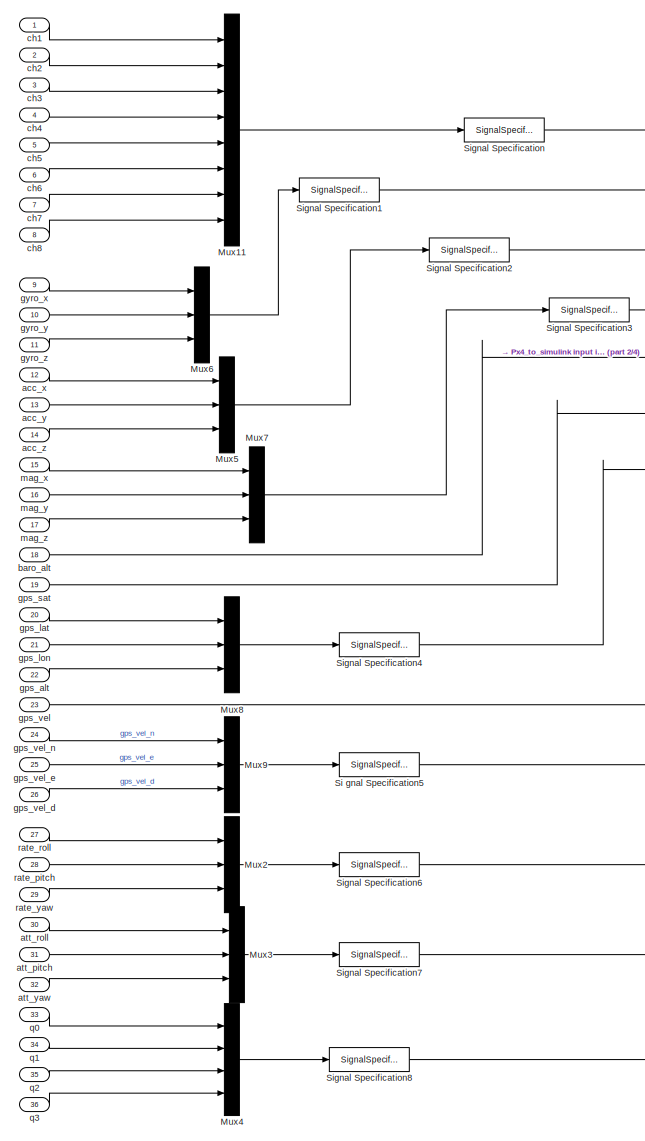
[diagram: root canvas - part 1/4, left side, full height]
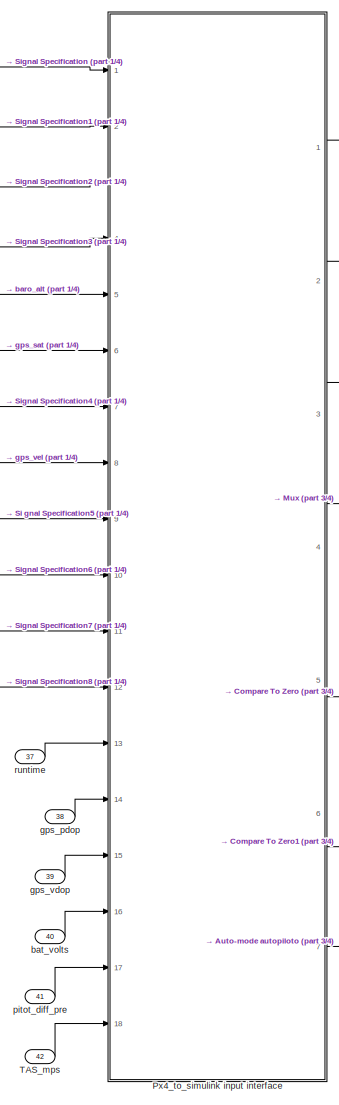
[diagram: root canvas - part 2/4, center side, full height]
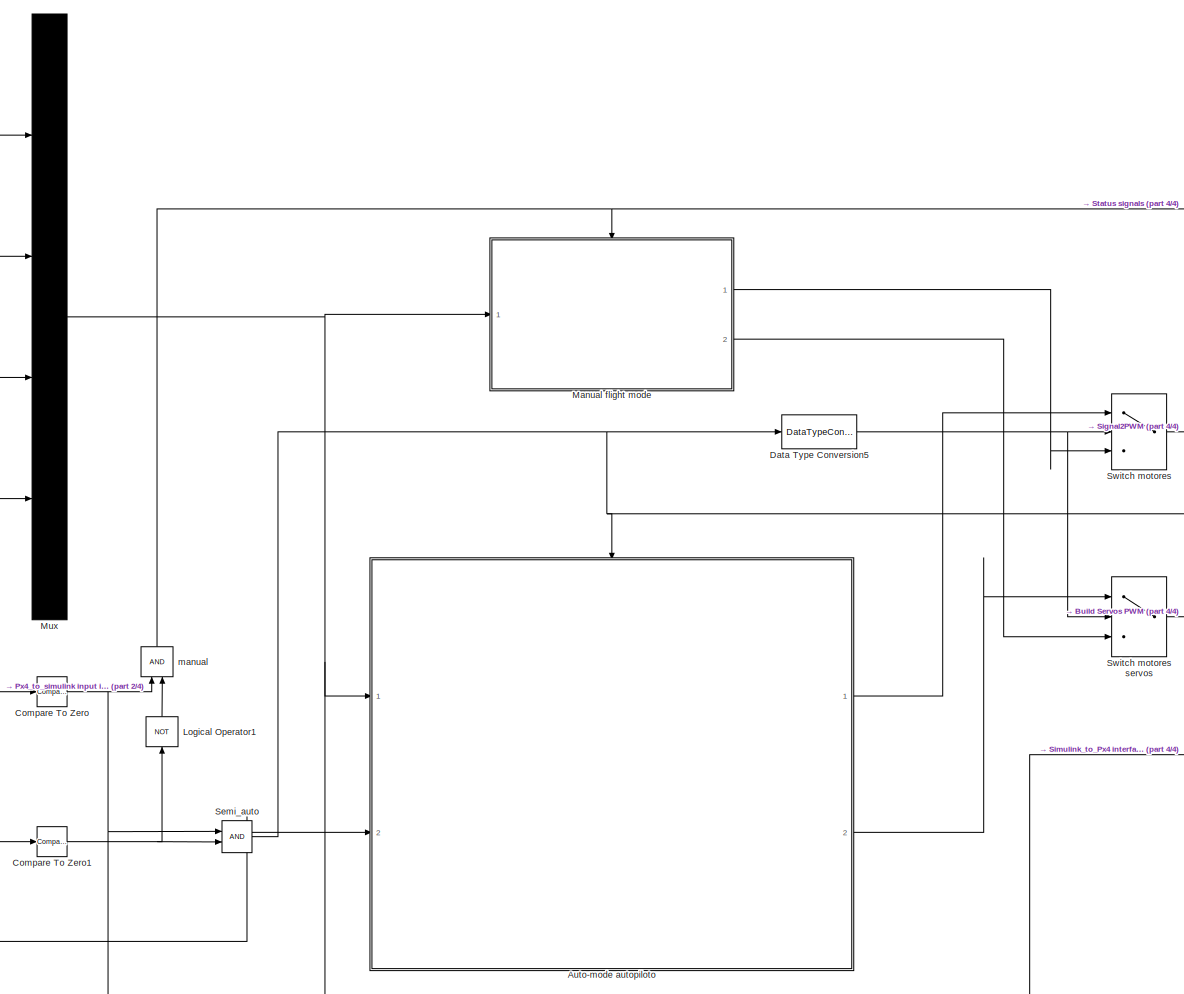
[diagram: root canvas - part 3/4, center side, full height]
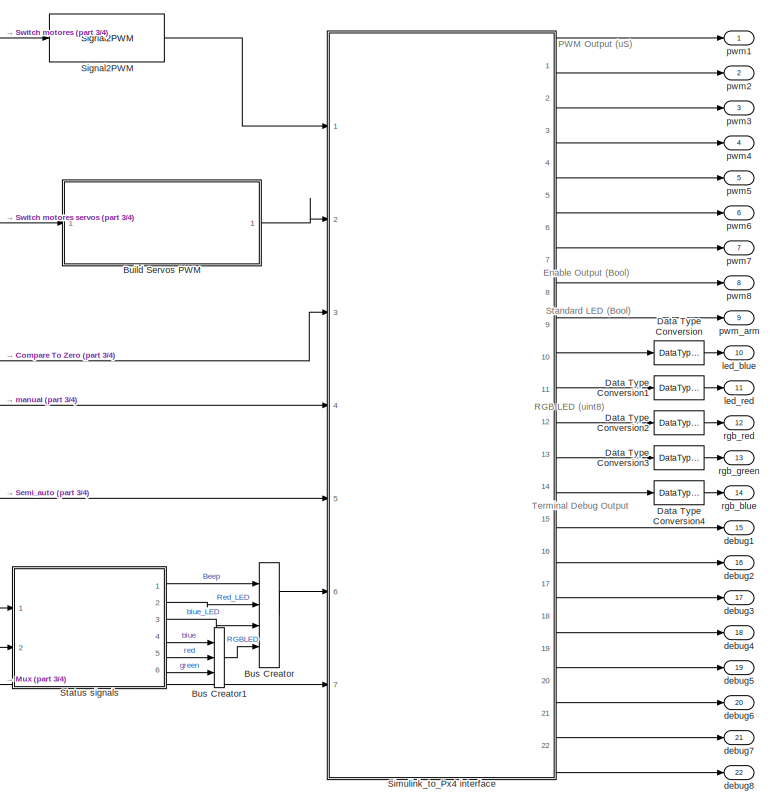
[diagram: root canvas - part 4/4, bottom right region]
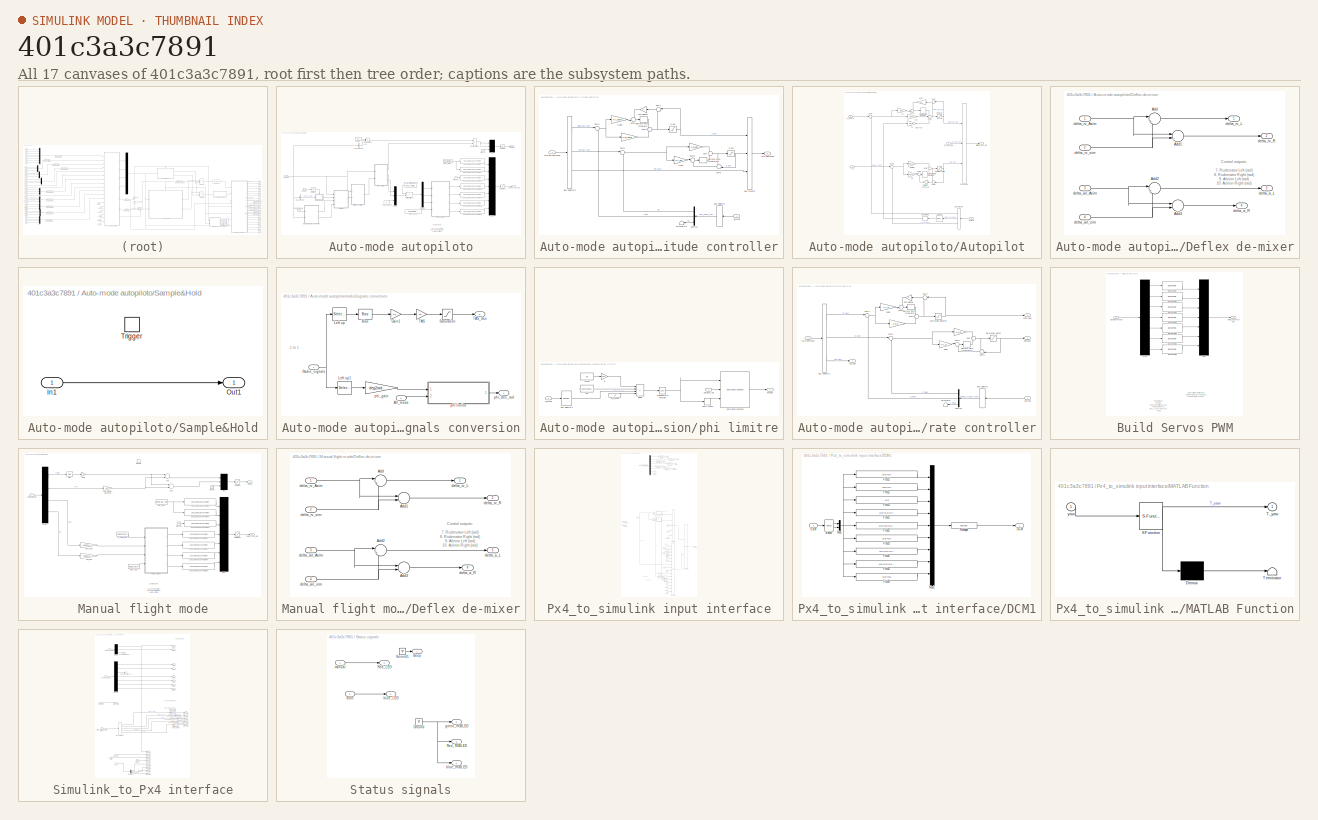
[diagram: thumbnail index - all 17 canvases of the model, root first then tree order]
MODEL slx_401c3a3c7891
KIND model
CONFIG AbsTol = auto
CONFIG FixedStep = T_ctrl
CONFIG MaxStep = auto
CONFIG MinStep = auto
CONFIG RelTol = 1e-3
CONFIG SampleTimeConstraint = Unconstrained
CONFIG Solver = FixedStepDiscrete
CONFIG SolverMode = SingleTasking
CONFIG SolverName = FixedStepDiscrete
CONFIG StartTime = 0.0
CONFIG StopTime = 10.0
BLOCK [SubSystem] Auto-mode autopiloto
  Ports = [2, 2, 1]
  RequestExecContextInheritance = off
  TreatAsAtomicUnit = on
BLOCK [Inport] Auto-mode autopiloto/All_meas
  IconDisplay = Port number
  Port = 2
BLOCK [SubSystem] Auto-mode autopiloto/Attitude controller
  Ports = [2, 1]
  RequestExecContextInheritance = off
BLOCK [Gain] Auto-mode autopiloto/Attitude controller/ 
  Gain = Kp_theta
  OutDataTypeStr = Inherit: Inherit via internal rule
  ParamDataTypeStr = Inherit: Inherit via internal rule
  SaturateOnIntegerOverflow = off
BLOCK [Gain] Auto-mode autopiloto/Attitude controller/  
  Gain = Kp_phi
  OutDataTypeStr = Inherit: Inherit via internal rule
  ParamDataTypeStr = Inherit: Inherit via internal rule
  SaturateOnIntegerOverflow = off
BLOCK [Inport] Auto-mode autopiloto/Attitude controller/All_meas
  IconDisplay = Port number
BLOCK [BusCreator] Auto-mode autopiloto/Attitude controller/Bus Creator
  DisplayOption = bar
  Inputs = 3
  Ports = [3, 1]
BLOCK [BusSelector] Auto-mode autopiloto/Attitude controller/Bus Selector
  OutputSignals = Meas.Eulr_meas_rad
  Ports = [1, 1]
BLOCK [BusSelector] Auto-mode autopiloto/Attitude controller/Bus Selector1
  OutputSignals = theta_des_rad,psi_des_rad,tau_des
  Ports = [1, 3]
BLOCK [Demux] Auto-mode autopiloto/Attitude controller/Demux1
  Outputs = 3
  Ports = [1, 3]
BLOCK [DiscreteIntegrator] Auto-mode autopiloto/Attitude controller/Discrete-Time Integrator
  InitialConditionSetting = State (most efficient)
  Ports = [1, 1]
  SampleTime = -1
BLOCK [DiscreteIntegrator] Auto-mode autopiloto/Attitude controller/Discrete-Time Integrator1
  InitialConditionSetting = State (most efficient)
  Ports = [1, 1]
  SampleTime = -1
BLOCK [Gain] Auto-mode autopiloto/Attitude controller/Gain1
  Gain = Ki_phi
  OutDataTypeStr = Inherit: Inherit via internal rule
  ParamDataTypeStr = Inherit: Inherit via internal rule
  SaturateOnIntegerOverflow = off
BLOCK [Gain] Auto-mode autopiloto/Attitude controller/Gain2
  Gain = Ki_theta
  OutDataTypeStr = Inherit: Inherit via internal rule
  ParamDataTypeStr = Inherit: Inherit via internal rule
  SaturateOnIntegerOverflow = off
BLOCK [Sum] Auto-mode autopiloto/Attitude controller/Sum
  IconShape = round
  InputSameDT = off
  Inputs = +|+
  OutDataTypeStr = Inherit: Inherit via internal rule
  Ports = [2, 1]
  SaturateOnIntegerOverflow = off
BLOCK [Sum] Auto-mode autopiloto/Attitude controller/Sum1
  IconShape = round
  InputSameDT = off
  Inputs = |+-
  OutDataTypeStr = Inherit: Inherit via internal rule
  Ports = [2, 1]
  SaturateOnIntegerOverflow = off
BLOCK [Sum] Auto-mode autopiloto/Attitude controller/Sum2
  IconShape = round
  InputSameDT = off
  Inputs = +|+
  OutDataTypeStr = Inherit: Inherit via internal rule
  Ports = [2, 1]
  SaturateOnIntegerOverflow = off
BLOCK [Sum] Auto-mode autopiloto/Attitude controller/Sum3
  IconShape = round
  InputSameDT = off
  Inputs = |+-
  OutDataTypeStr = Inherit: Inherit via internal rule
  Ports = [2, 1]
  SaturateOnIntegerOverflow = off
BLOCK [Sum] Auto-mode autopiloto/Attitude controller/Sum4
  IconShape = round
  InputSameDT = off
  Inputs = |+-
  OutDataTypeStr = Inherit: Inherit via internal rule
  Ports = [2, 1]
  SaturateOnIntegerOverflow = off
BLOCK [Sum] Auto-mode autopiloto/Attitude controller/Sum5
  IconShape = round
  InputSameDT = off
  Inputs = |++
  OutDataTypeStr = Inherit: Inherit via internal rule
  Ports = [2, 1]
  SaturateOnIntegerOverflow = off
BLOCK [Sum] Auto-mode autopiloto/Attitude controller/Sum6
  IconShape = round
  InputSameDT = off
  Inputs = -+|
  OutDataTypeStr = Inherit: Inherit via internal rule
  Ports = [2, 1]
  SaturateOnIntegerOverflow = off
BLOCK [Sum] Auto-mode autopiloto/Attitude controller/Sum9
  IconShape = round
  InputSameDT = off
  Inputs = ++|
  OutDataTypeStr = Inherit: Inherit via internal rule
  Ports = [2, 1]
  SaturateOnIntegerOverflow = off
BLOCK [Terminator] Auto-mode autopiloto/Attitude controller/Terminator5
BLOCK [Gain] Auto-mode autopiloto/Attitude controller/anti windup
  OutDataTypeStr = Inherit: Inherit via internal rule
  ParamDataTypeStr = Inherit: Inherit via internal rule
  SaturateOnIntegerOverflow = off
BLOCK [Inport] Auto-mode autopiloto/Attitude controller/attitude demands
  IconDisplay = Port number
  Port = 2
BLOCK [Saturate] Auto-mode autopiloto/Attitude controller/p sat
  InputPortMap = u0
  LowerLimit = -70*pi/180
  Ports = [1, 1]
  UpperLimit = 70*pi/180
  ZeroCross = off
BLOCK [Saturate] Auto-mode autopiloto/Attitude controller/q sat
  InputPortMap = u0
  LowerLimit = -700*pi/180
  Ports = [1, 1]
  UpperLimit = 700*pi/180
  ZeroCross = off
BLOCK [Outport] Auto-mode autopiloto/Attitude controller/rate demands
  IconDisplay = Port number
BLOCK [SubSystem] Auto-mode autopiloto/Autopilot
  Ports = [4, 1]
  RequestExecContextInheritance = off
BLOCK [Inport] Auto-mode autopiloto/Autopilot/All_meas
  IconDisplay = Port number
BLOCK [BusCreator] Auto-mode autopiloto/Autopilot/Bus Creator
  DisplayOption = bar
  Inputs = 3
  Ports = [3, 1]
BLOCK [BusSelector] Auto-mode autopiloto/Autopilot/Bus Selector
  OutputSignals = Meas.press_alt_m,Meas.gps_vel_ned,Meas.TAS_mps
  Ports = [1, 3]
BLOCK [DiscreteIntegrator] Auto-mode autopiloto/Autopilot/Discrete-Time Integrator
  InitialCondition = Euler_0(2)
  InitialConditionSetting = State (most efficient)
  LimitOutput = on
  LowerSaturationLimit = -0.3
  Ports = [1, 1]
  SampleTime = -1
  UpperSaturationLimit = 0.3
BLOCK [DiscreteIntegrator] Auto-mode autopiloto/Autopilot/Discrete-Time Integrator1
  InitialCondition = tau_1_0
  InitialConditionSetting = State (most efficient)
  LowerSaturationLimit = -0.3
  Ports = [1, 1]
  SampleTime = -1
  UpperSaturationLimit = 0.3
BLOCK [Gain] Auto-mode autopiloto/Autopilot/K1
  Gain = Kd_h
  OutDataTypeStr = Inherit: Inherit via internal rule
  ParamDataTypeStr = Inherit: Inherit via internal rule
  SaturateOnIntegerOverflow = off
BLOCK [Gain] Auto-mode autopiloto/Autopilot/K2
  Gain = Ki_h
  OutDataTypeStr = Inherit: Inherit via internal rule
  ParamDataTypeStr = Inherit: Inherit via internal rule
  SaturateOnIntegerOverflow = off
BLOCK [Gain] Auto-mode autopiloto/Autopilot/KZe
  Gain = Kp_h
  OutDataTypeStr = Inherit: Inherit via internal rule
  ParamDataTypeStr = Inherit: Inherit via internal rule
  SaturateOnIntegerOverflow = off
BLOCK [Gain] Auto-mode autopiloto/Autopilot/KZe1
  Gain = 5
  OutDataTypeStr = Inherit: Inherit via internal rule
  ParamDataTypeStr = Inherit: Inherit via internal rule
  SaturateOnIntegerOverflow = off
BLOCK [Gain] Auto-mode autopiloto/Autopilot/Ki2
  Gain = Ki_u
  OutDataTypeStr = Inherit: Inherit via internal rule
  ParamDataTypeStr = Inherit: Inherit via internal rule
  SaturateOnIntegerOverflow = off
BLOCK [Gain] Auto-mode autopiloto/Autopilot/Kthrottle1
  OutDataTypeStr = Inherit: Inherit via internal rule
  ParamDataTypeStr = Inherit: Inherit via internal rule
  SaturateOnIntegerOverflow = off
BLOCK [Gain] Auto-mode autopiloto/Autopilot/Kthrottle2
  Gain = Kp_u
  OutDataTypeStr = Inherit: Inherit via internal rule
  ParamDataTypeStr = Inherit: Inherit via internal rule
  SaturateOnIntegerOverflow = off
BLOCK [Saturate] Auto-mode autopiloto/Autopilot/Saturation Throttle
  InputPortMap = u0
  LowerLimit = 0
  Ports = [1, 1]
  UpperLimit = 1
  ZeroCross = off
BLOCK [Selector] Auto-mode autopiloto/Autopilot/Selector
  Indices = 3
  InputPortWidth = 3
  Ports = [1, 1]
BLOCK [Sum] Auto-mode autopiloto/Autopilot/Sum1
  IconShape = round
  InputSameDT = off
  Inputs = -+|
  OutDataTypeStr = Inherit: Inherit via internal rule
  Ports = [2, 1]
  SaturateOnIntegerOverflow = off
BLOCK [Sum] Auto-mode autopiloto/Autopilot/Sum2
  IconShape = round
  InputSameDT = off
  OutDataTypeStr = Inherit: Inherit via internal rule
  Ports = [2, 1]
  SaturateOnIntegerOverflow = off
BLOCK [Sum] Auto-mode autopiloto/Autopilot/Sum3
  IconShape = round
  InputSameDT = off
  Inputs = |+-
  OutDataTypeStr = Inherit: Inherit via internal rule
  Ports = [2, 1]
  SaturateOnIntegerOverflow = off
BLOCK [Sum] Auto-mode autopiloto/Autopilot/Sum4
  IconShape = round
  InputSameDT = off
  Inputs = |+-
  OutDataTypeStr = Inherit: Inherit via internal rule
  Ports = [2, 1]
  SaturateOnIntegerOverflow = off
BLOCK [Sum] Auto-mode autopiloto/Autopilot/Sum5
  IconShape = round
  InputSameDT = off
  Inputs = |++
  OutDataTypeStr = Inherit: Inherit via internal rule
  Ports = [2, 1]
  SaturateOnIntegerOverflow = off
BLOCK [Sum] Auto-mode autopiloto/Autopilot/Sum6
  IconShape = round
  InputSameDT = off
  Inputs = -+|
  OutDataTypeStr = Inherit: Inherit via internal rule
  Ports = [2, 1]
  SaturateOnIntegerOverflow = off
BLOCK [Sum] Auto-mode autopiloto/Autopilot/Sum7
  IconShape = round
  InputSameDT = off
  Inputs = |+-
  OutDataTypeStr = Inherit: Inherit via internal rule
  Ports = [2, 1]
  SaturateOnIntegerOverflow = off
BLOCK [Sum] Auto-mode autopiloto/Autopilot/Sum8
  IconShape = round
  InputSameDT = off
  Inputs = ++-
  OutDataTypeStr = Inherit: Inherit via internal rule
  Ports = [3, 1]
  SaturateOnIntegerOverflow = off
BLOCK [UnaryMinus] Auto-mode autopiloto/Autopilot/Unary Minus
BLOCK [Inport] Auto-mode autopiloto/Autopilot/V_d
  IconDisplay = Port number
  Port = 4
BLOCK [Outport] Auto-mode autopiloto/Autopilot/attitude_des_rad
  IconDisplay = Port number
BLOCK [Inport] Auto-mode autopiloto/Autopilot/h_des_m
  IconDisplay = Port number
  Port = 2
BLOCK [Inport] Auto-mode autopiloto/Autopilot/phi_des_rad
  IconDisplay = Port number
  Port = 3
BLOCK [Saturate] Auto-mode autopiloto/Autopilot/theta sat
  InputPortMap = u0
  LowerLimit = -10*pi/180
  Ports = [1, 1]
  UpperLimit = 20*pi/180
  ZeroCross = off
BLOCK [BusSelector] Auto-mode autopiloto/Bus Selector
  OutputSignals = Meas.press_alt_m
  Ports = [1, 1]
BLOCK [BusSelector] Auto-mode autopiloto/Bus Selector1
  OutputSignals = Meas.Volt
  Ports = [1, 1]
BLOCK [SubSystem] Auto-mode autopiloto/Deflex de-mixer
  Ports = [4, 4]
  RequestExecContextInheritance = off
  TreatAsAtomicUnit = on
BLOCK [Sum] Auto-mode autopiloto/Deflex de-mixer/Add
  IconShape = round
  InputSameDT = off
  Inputs = |++
  OutDataTypeStr = Inherit: Inherit via internal rule
  Ports = [2, 1]
  SaturateOnIntegerOverflow = off
BLOCK [Sum] Auto-mode autopiloto/Deflex de-mixer/Add1
  IconShape = round
  InputSameDT = off
  Inputs = |-+
  OutDataTypeStr = Inherit: Inherit via internal rule
  Ports = [2, 1]
  SaturateOnIntegerOverflow = off
BLOCK [Sum] Auto-mode autopiloto/Deflex de-mixer/Add2
  IconShape = round
  InputSameDT = off
  Inputs = |++
  OutDataTypeStr = Inherit: Inherit via internal rule
  Ports = [2, 1]
  SaturateOnIntegerOverflow = off
BLOCK [Sum] Auto-mode autopiloto/Deflex de-mixer/Add3
  IconShape = round
  InputSameDT = off
  Inputs = |-+
  OutDataTypeStr = Inherit: Inherit via internal rule
  Ports = [2, 1]
  SaturateOnIntegerOverflow = off
BLOCK [Outport] Auto-mode autopiloto/Deflex de-mixer/delta_a_L
  IconDisplay = Port number
  Port = 3
BLOCK [Outport] Auto-mode autopiloto/Deflex de-mixer/delta_a_R
  IconDisplay = Port number
  Port = 4
BLOCK [Inport] Auto-mode autopiloto/Deflex de-mixer/delta_ail_Asim
  IconDisplay = Port number
  Port = 3
BLOCK [Inport] Auto-mode autopiloto/Deflex de-mixer/delta_ail_sim
  IconDisplay = Port number
  Port = 4
BLOCK [Inport] Auto-mode autopiloto/Deflex de-mixer/delta_rv_Asim
  IconDisplay = Port number
BLOCK [Outport] Auto-mode autopiloto/Deflex de-mixer/delta_rv_L
  IconDisplay = Port number
BLOCK [Outport] Auto-mode autopiloto/Deflex de-mixer/delta_rv_R
  IconDisplay = Port number
  Port = 2
BLOCK [Inport] Auto-mode autopiloto/Deflex de-mixer/delta_rv_sim
  IconDisplay = Port number
  Port = 2
BLOCK [Demux] Auto-mode autopiloto/Demux
  DisplayOption = bar
  Outputs = 3
  Ports = [1, 3]
BLOCK [Product] Auto-mode autopiloto/ESC-sacling
  InputSameDT = off
  Inputs = */
  OutDataTypeStr = Inherit: Inherit via internal rule
  Ports = [2, 1]
  RndMeth = Floor
  SaturateOnIntegerOverflow = off
BLOCK [Product] Auto-mode autopiloto/ESC-sacling1
  InputSameDT = off
  Inputs = **
  OutDataTypeStr = Inherit: Inherit via internal rule
  Ports = [2, 1]
  RndMeth = Floor
  SaturateOnIntegerOverflow = off
BLOCK [EnablePort] Auto-mode autopiloto/Enable
  Ports = [0, 1]
  ShowOutputPort = on
BLOCK [Ground] Auto-mode autopiloto/Ground
BLOCK [Ground] Auto-mode autopiloto/Ground1
BLOCK [Product] Auto-mode autopiloto/Matrix Multiply2
  InputSameDT = off
  Multiplication = Matrix(*)
  OutDataTypeStr = Inherit: Inherit via internal rule
  Ports = [2, 1]
  RndMeth = Floor
  SaturateOnIntegerOverflow = off
BLOCK [Outport] Auto-mode autopiloto/Motores
  IconDisplay = Port number
BLOCK [Constant] Auto-mode autopiloto/Mots_orient
  Value = deg2rad(-90)
BLOCK [Mux] Auto-mode autopiloto/Mux
  DisplayOption = bar
  Inputs = 3
  Ports = [3, 1]
BLOCK [Mux] Auto-mode autopiloto/Mux1
  DisplayOption = bar
  Inputs = 7
  Ports = [7, 1]
BLOCK [Mux] Auto-mode autopiloto/Mux2
  DisplayOption = bar
  Inputs = 3
  Ports = [3, 1]
BLOCK [Inport] Auto-mode autopiloto/Radio signals
  IconDisplay = Port number
BLOCK [SubSystem] Auto-mode autopiloto/Sample&Hold
  Ports = [1, 1, 0, 1]
  RequestExecContextInheritance = off
  TreatAsAtomicUnit = on
BLOCK [Inport] Auto-mode autopiloto/Sample&Hold/In1
  IconDisplay = Port number
BLOCK [Outport] Auto-mode autopiloto/Sample&Hold/Out1
  IconDisplay = Port number
BLOCK [TriggerPort] Auto-mode autopiloto/Sample&Hold/Trigger
  Ports = []
  StatesWhenEnabling = held
BLOCK [Saturate] Auto-mode autopiloto/Saturation
  InputPortMap = u0
  LowerLimit = 0
  Ports = [1, 1]
  UpperLimit = 1
BLOCK [Saturate] Auto-mode autopiloto/Saturation1
  InputPortMap = u0
  LowerLimit = -deg2rad(90)
  Ports = [1, 1]
  UpperLimit = deg2rad(90)
BLOCK [Reference] Auto-mode autopiloto/Sup2Servo Lin conversion  REF=DBX_model/Sup2Servo Lin conversion
  Bias = Servo_calib.Servo1.Sup_rad_0
  Gain = Servo_calib.Servo1.Pendiente_Sup_Servo
  Ports = [1, 1]
  SourceBlock = DBX_model/Sup2Servo Lin conversion
BLOCK [Reference] Auto-mode autopiloto/Sup2Servo Lin conversion1  REF=DBX_model/Sup2Servo Lin conversion
  Bias = Servo_calib.Servo2.Sup_rad_0
  Gain = Servo_calib.Servo2.Pendiente_Sup_Servo
  Ports = [1, 1]
  SourceBlock = DBX_model/Sup2Servo Lin conversion
BLOCK [Reference] Auto-mode autopiloto/Sup2Servo Lin conversion2  REF=DBX_model/Sup2Servo Lin conversion
  Bias = Servo_calib.Servo3.Sup_rad_0
  Gain = Servo_calib.Servo3.Pendiente_Sup_Servo
  Ports = [1, 1]
  SourceBlock = DBX_model/Sup2Servo Lin conversion
BLOCK [Reference] Auto-mode autopiloto/Sup2Servo Lin conversion3  REF=DBX_model/Sup2Servo Lin conversion
  Bias = Servo_calib.Servo4.Sup_rad_0
  Gain = Servo_calib.Servo4.Pendiente_Sup_Servo
  Ports = [1, 1]
  SourceBlock = DBX_model/Sup2Servo Lin conversion
BLOCK [Reference] Auto-mode autopiloto/Sup2Servo Lin conversion4  REF=DBX_model/Sup2Servo Lin conversion
  Bias = Servo_calib.Servo5.Sup_rad_0
  Gain = Servo_calib.Servo5.Pendiente_Sup_Servo
  Ports = [1, 1]
  SourceBlock = DBX_model/Sup2Servo Lin conversion
BLOCK [Reference] Auto-mode autopiloto/Sup2Servo Lin conversion5  REF=DBX_model/Sup2Servo Lin conversion
  Bias = Servo_calib.Servo6.Sup_rad_0
  Gain = Servo_calib.Servo6.Pendiente_Sup_Servo
  Ports = [1, 1]
  SourceBlock = DBX_model/Sup2Servo Lin conversion
BLOCK [Reference] Auto-mode autopiloto/Sup2Servo Lin conversion6  REF=DBX_model/Sup2Servo Lin conversion
  Bias = Servo_calib.Servo7.Sup_rad_0
  Gain = Servo_calib.Servo7.Pendiente_Sup_Servo
  Ports = [1, 1]
  SourceBlock = DBX_model/Sup2Servo Lin conversion
BLOCK [UnitDelay] Auto-mode autopiloto/Unit Delay
  InputProcessing = Elements as channels (sample based)
  SampleTime = -1
BLOCK [Constant] Auto-mode autopiloto/Volt_ref
  Value = 30
BLOCK [Constant] Auto-mode autopiloto/flaps_ang
  Value = deg2rad(Flaps_ang_deg)
BLOCK [Constant] Auto-mode autopiloto/inv_B_effectiveness
  Value = FCS_control_mix
BLOCK [SubSystem] Auto-mode autopiloto/radio2signals conversion
  Ports = [2, 2]
  RequestExecContextInheritance = off
BLOCK [Inport] Auto-mode autopiloto/radio2signals conversion/All_meas
  IconDisplay = Port number
  Port = 2
BLOCK [Bias] Auto-mode autopiloto/radio2signals conversion/Bias
  Bias = +1
  SaturateOnIntegerOverflow = off
BLOCK [Gain] Auto-mode autopiloto/radio2signals conversion/Gain1
  Gain = 1/2
  OutDataTypeStr = Inherit: Inherit via internal rule
  ParamDataTypeStr = Inherit: Inherit via internal rule
  SaturateOnIntegerOverflow = off
BLOCK [Selector] Auto-mode autopiloto/radio2signals conversion/Left up
  InputPortWidth = 4
  Ports = [1, 1]
BLOCK [Selector] Auto-mode autopiloto/radio2signals conversion/Left up1
  Indices = 4
  InputPortWidth = 4
  Ports = [1, 1]
BLOCK [Inport] Auto-mode autopiloto/radio2signals conversion/Radio_signals
  IconDisplay = Port number
BLOCK [Saturate] Auto-mode autopiloto/radio2signals conversion/Saturation
  InputPortMap = u0
  LowerLimit = 15
  Ports = [1, 1]
  UpperLimit = 25
BLOCK [Gain] Auto-mode autopiloto/radio2signals conversion/TAS
  Gain = 25
  OutDataTypeStr = Inherit: Inherit via internal rule
  ParamDataTypeStr = Inherit: Inherit via internal rule
  SaturateOnIntegerOverflow = off
BLOCK [Outport] Auto-mode autopiloto/radio2signals conversion/TAS_des
  IconDisplay = Port number
  Port = 2
BLOCK [SubSystem] Auto-mode autopiloto/radio2signals conversion/phi limitre
  Ports = [2, 1]
  RequestExecContextInheritance = off
  TreatAsAtomicUnit = on
BLOCK [Inport] Auto-mode autopiloto/radio2signals conversion/phi limitre/All_meas
  IconDisplay = Port number
  Port = 2
BLOCK [BusSelector] Auto-mode autopiloto/radio2signals conversion/phi limitre/Bus Selector1
  OutputSignals = Meas.q_dyn_press
  Ports = [1, 1]
BLOCK [Constant] Auto-mode autopiloto/radio2signals conversion/phi limitre/C_L_max
  Value = 1.4
BLOCK [Product] Auto-mode autopiloto/radio2signals conversion/phi limitre/Divide
  InputSameDT = off
  Inputs = *///
  OutDataTypeStr = Inherit: Inherit via internal rule
  Ports = [4, 1]
  RndMeth = Floor
  SaturateOnIntegerOverflow = off
BLOCK [Constant] Auto-mode autopiloto/radio2signals conversion/phi limitre/Mass
  Value = m
BLOCK [Reference] Auto-mode autopiloto/radio2signals conversion/phi limitre/Saturation Dynamic  REF=simulink/Discontinuities/Saturation
Dynamic
  DoSatur = off
  LockScale = off
  OutDataType = fixdt(1, 16)
  OutDataTypeStr = Inherit: Same as second input
  OutMax = []
  OutMin = []
  OutScaling = 2^-10
  OutputDataTypeScalingMode = Same as second input
  Ports = [3, 1]
  RndMeth = Floor
  SourceBlock = simulink/Discontinuities/Saturation\nDynamic
  SourceType = Saturation Dynamic
BLOCK [Constant] Auto-mode autopiloto/radio2signals conversion/phi limitre/Sw
  Value = S_w+0.15*1.38
BLOCK [Trigonometry] Auto-mode autopiloto/radio2signals conversion/phi limitre/Trigonometric Function
  Operator = acos
  OutputSignalType = real
  Ports = [1, 1]
BLOCK [UnaryMinus] Auto-mode autopiloto/radio2signals conversion/phi limitre/Unary Minus
BLOCK [Gain] Auto-mode autopiloto/radio2signals conversion/phi limitre/g
  Gain = 9.81
  OutDataTypeStr = Inherit: Inherit via internal rule
  ParamDataTypeStr = Inherit: Inherit via internal rule
  SaturateOnIntegerOverflow = off
BLOCK [Outport] Auto-mode autopiloto/radio2signals conversion/phi limitre/phi_des
  IconDisplay = Port number
BLOCK [Inport] Auto-mode autopiloto/radio2signals conversion/phi limitre/phi_des_rad
  IconDisplay = Port number
BLOCK [Outport] Auto-mode autopiloto/radio2signals conversion/phi_des_rad
  IconDisplay = Port number
BLOCK [Gain] Auto-mode autopiloto/radio2signals conversion/phi_gain
  Gain = deg2rad(20)
  OutDataTypeStr = Inherit: Inherit via internal rule
  ParamDataTypeStr = Inherit: Inherit via internal rule
  SaturateOnIntegerOverflow = off
BLOCK [SubSystem] Auto-mode autopiloto/rate controller
  Ports = [2, 3]
  RequestExecContextInheritance = off
BLOCK [Gain] Auto-mode autopiloto/rate controller/ 
  Gain = Kp_q
  OutDataTypeStr = Inherit: Inherit via internal rule
  ParamDataTypeStr = Inherit: Inherit via internal rule
  SaturateOnIntegerOverflow = off
BLOCK [Gain] Auto-mode autopiloto/rate controller/  
  Gain = Kp_p
  OutDataTypeStr = Inherit: Inherit via internal rule
  ParamDataTypeStr = Inherit: Inherit via internal rule
  SaturateOnIntegerOverflow = off
BLOCK [Inport] Auto-mode autopiloto/rate controller/All_meas
  IconDisplay = Port number
BLOCK [BusSelector] Auto-mode autopiloto/rate controller/Bus Selector
  OutputSignals = Meas.omega_b_meas_radps
  Ports = [1, 1]
BLOCK [BusSelector] Auto-mode autopiloto/rate controller/Bus Selector1
  OutputSignals = q_des,p_des,tau_des
  Ports = [1, 3]
BLOCK [Demux] Auto-mode autopiloto/rate controller/Demux1
  Outputs = 3
  Ports = [1, 3]
BLOCK [DiscreteIntegrator] Auto-mode autopiloto/rate controller/Discrete-Time Integrator
  InitialCondition = delta_rv_sim_0 + Kp_q*Euler_0_2
  InitialConditionSetting = State (most efficient)
  Ports = [1, 1]
  SampleTime = -1
BLOCK [DiscreteIntegrator] Auto-mode autopiloto/rate controller/Discrete-Time Integrator1
  InitialCondition = delta_ail_Asim_0
  InitialConditionSetting = State (most efficient)
  Ports = [1, 1]
  SampleTime = -1
BLOCK [Gain] Auto-mode autopiloto/rate controller/Gain1
  Gain = Ki_p
  OutDataTypeStr = Inherit: Inherit via internal rule
  ParamDataTypeStr = Inherit: Inherit via internal rule
  SaturateOnIntegerOverflow = off
BLOCK [Gain] Auto-mode autopiloto/rate controller/Gain2
  Gain = Ki_q
  OutDataTypeStr = Inherit: Inherit via internal rule
  ParamDataTypeStr = Inherit: Inherit via internal rule
  SaturateOnIntegerOverflow = off
BLOCK [Outport] Auto-mode autopiloto/rate controller/Long dem
  IconDisplay = Port number
  Port = 3
BLOCK [Outport] Auto-mode autopiloto/rate controller/Roll dem
  IconDisplay = Port number
  Port = 2
BLOCK [Saturate] Auto-mode autopiloto/rate controller/Saturation Aileron
  InputPortMap = u0
  LowerLimit = -20*pi/180
  Ports = [1, 1]
  UpperLimit = 20*pi/180
  ZeroCross = off
BLOCK [Saturate] Auto-mode autopiloto/rate controller/Saturation Elevator
  InputPortMap = u0
  LowerLimit = -20*pi/180
  Ports = [1, 1]
  UpperLimit = 20*pi/180
  ZeroCross = off
BLOCK [Sum] Auto-mode autopiloto/rate controller/Sum
  IconShape = round
  InputSameDT = off
  Inputs = +|+
  OutDataTypeStr = Inherit: Inherit via internal rule
  Ports = [2, 1]
  SaturateOnIntegerOverflow = off
BLOCK [Sum] Auto-mode autopiloto/rate controller/Sum1
  IconShape = round
  InputSameDT = off
  Inputs = |+-
  OutDataTypeStr = Inherit: Inherit via internal rule
  Ports = [2, 1]
  SaturateOnIntegerOverflow = off
BLOCK [Sum] Auto-mode autopiloto/rate controller/Sum2
  IconShape = round
  InputSameDT = off
  Inputs = +|+
  OutDataTypeStr = Inherit: Inherit via internal rule
  Ports = [2, 1]
  SaturateOnIntegerOverflow = off
BLOCK [Sum] Auto-mode autopiloto/rate controller/Sum3
  IconShape = round
  InputSameDT = off
  Inputs = |+-
  OutDataTypeStr = Inherit: Inherit via internal rule
  Ports = [2, 1]
  SaturateOnIntegerOverflow = off
BLOCK [Sum] Auto-mode autopiloto/rate controller/Sum4
  IconShape = round
  InputSameDT = off
  Inputs = |+-
  OutDataTypeStr = Inherit: Inherit via internal rule
  Ports = [2, 1]
  SaturateOnIntegerOverflow = off
BLOCK [Sum] Auto-mode autopiloto/rate controller/Sum5
  IconShape = round
  InputSameDT = off
  Inputs = |++
  OutDataTypeStr = Inherit: Inherit via internal rule
  Ports = [2, 1]
  SaturateOnIntegerOverflow = off
BLOCK [Sum] Auto-mode autopiloto/rate controller/Sum6
  IconShape = round
  InputSameDT = off
  Inputs = -+|
  OutDataTypeStr = Inherit: Inherit via internal rule
  Ports = [2, 1]
  SaturateOnIntegerOverflow = off
BLOCK [Sum] Auto-mode autopiloto/rate controller/Sum9
  IconShape = round
  InputSameDT = off
  Inputs = ++|
  OutDataTypeStr = Inherit: Inherit via internal rule
  Ports = [2, 1]
  SaturateOnIntegerOverflow = off
BLOCK [Terminator] Auto-mode autopiloto/rate controller/Terminator
BLOCK [Gain] Auto-mode autopiloto/rate controller/anti windup
  OutDataTypeStr = Inherit: Inherit via internal rule
  ParamDataTypeStr = Inherit: Inherit via internal rule
  SaturateOnIntegerOverflow = off
BLOCK [Inport] Auto-mode autopiloto/rate controller/rate demands
  IconDisplay = Port number
  Port = 2
BLOCK [Outport] Auto-mode autopiloto/rate controller/tau_des
  IconDisplay = Port number
BLOCK [Outport] Auto-mode autopiloto/servos_ang_rad
  IconDisplay = Port number
  Port = 2
BLOCK [Constant] Auto-mode autopiloto/yaw_demand
  Value = 0
BLOCK [SubSystem] Build Servos PWM
  Ports = [1, 1]
  RequestExecContextInheritance = off
  TreatAsAtomicUnit = on
BLOCK [Demux] Build Servos PWM/Demux
  DisplayOption = bar
  Outputs = 7
  Ports = [1, 7]
BLOCK [Mux] Build Servos PWM/Mux
  DisplayOption = bar
  Inputs = 7
  Ports = [7, 1]
BLOCK [Outport] Build Servos PWM/PWM_us servos out
  IconDisplay = Port number
BLOCK [Reference] Build Servos PWM/Signal2PWM  REF=DBX_model/Signal2PWM
  Ports = [1, 1]
  SourceBlock = DBX_model/Signal2PWM
  a = 2100
  b = deg2rad(90)
  c = 900
  d = -deg2rad(90)
BLOCK [Reference] Build Servos PWM/Signal2PWM1  REF=DBX_model/Signal2PWM
  Ports = [1, 1]
  SourceBlock = DBX_model/Signal2PWM
  a = 2100
  b = deg2rad(90)
  c = 900
  d = -deg2rad(90)
BLOCK [Reference] Build Servos PWM/Signal2PWM2  REF=DBX_model/Signal2PWM
  Ports = [1, 1]
  SourceBlock = DBX_model/Signal2PWM
  a = 2100
  b = deg2rad(90)
  c = 900
  d = -deg2rad(90)
BLOCK [Reference] Build Servos PWM/Signal2PWM3  REF=DBX_model/Signal2PWM
  Ports = [1, 1]
  SourceBlock = DBX_model/Signal2PWM
  a = 2100
  b = deg2rad(90)
  c = 900
  d = -deg2rad(90)
BLOCK [Reference] Build Servos PWM/Signal2PWM4  REF=DBX_model/Signal2PWM
  Ports = [1, 1]
  SourceBlock = DBX_model/Signal2PWM
  a = 2100
  b = deg2rad(90)
  c = 900
  d = -deg2rad(90)
BLOCK [Reference] Build Servos PWM/Signal2PWM5  REF=DBX_model/Signal2PWM
  Ports = [1, 1]
  SourceBlock = DBX_model/Signal2PWM
  a = 2100
  b = deg2rad(90)
  c = 900
  d = -deg2rad(90)
BLOCK [Reference] Build Servos PWM/Signal2PWM6  REF=DBX_model/Signal2PWM
  Ports = [1, 1]
  SourceBlock = DBX_model/Signal2PWM
  a = 2100
  b = deg2rad(90)
  c = 900
  d = -deg2rad(90)
BLOCK [Inport] Build Servos PWM/signals servos in
  IconDisplay = Port number
BLOCK [BusCreator] Bus Creator
  DisplayOption = bar
  Ports = [4, 1]
BLOCK [BusCreator] Bus Creator1
  DisplayOption = bar
  Inputs = 3
  Ports = [3, 1]
BLOCK [Reference] Compare To Zero  REF=simulink/Logic and Bit
Operations/Compare
To Zero
  OutDataTypeStr = boolean
  Ports = [1, 1]
  SourceBlock = simulink/Logic and Bit\nOperations/Compare\nTo Zero
  SourceType = Compare To Zero
  ZeroCross = on
  relop = >=
BLOCK [Reference] Compare To Zero1  REF=simulink/Logic and Bit
Operations/Compare
To Zero
  OutDataTypeStr = boolean
  Ports = [1, 1]
  SourceBlock = simulink/Logic and Bit\nOperations/Compare\nTo Zero
  SourceType = Compare To Zero
  ZeroCross = on
  relop = >=
BLOCK [DataTypeConversion] Data Type Conversion
  OutDataTypeStr = boolean
  RndMeth = Floor
  SaturateOnIntegerOverflow = off
BLOCK [DataTypeConversion] Data Type Conversion1
  OutDataTypeStr = boolean
  RndMeth = Floor
  SaturateOnIntegerOverflow = off
BLOCK [DataTypeConversion] Data Type Conversion2
  OutDataTypeStr = uint8
  RndMeth = Floor
  SaturateOnIntegerOverflow = off
BLOCK [DataTypeConversion] Data Type Conversion3
  OutDataTypeStr = uint8
  RndMeth = Floor
  SaturateOnIntegerOverflow = off
BLOCK [DataTypeConversion] Data Type Conversion4
  OutDataTypeStr = uint8
  RndMeth = Floor
  SaturateOnIntegerOverflow = off
BLOCK [DataTypeConversion] Data Type Conversion5
  OutDataTypeStr = double
  RndMeth = Floor
  SaturateOnIntegerOverflow = off
BLOCK [Logic] Logical Operator1
  AllPortsSameDT = off
  IconShape = distinctive
  Operator = NOT
  OutDataTypeStr = boolean
  Ports = [1, 1]
BLOCK [SubSystem] Manual flight mode
  Ports = [1, 2, 1]
  RequestExecContextInheritance = off
  TreatAsAtomicUnit = on
BLOCK [Sum] Manual flight mode/Add
  InputSameDT = off
  OutDataTypeStr = Inherit: Inherit via internal rule
  Ports = [2, 1]
  SaturateOnIntegerOverflow = off
BLOCK [Sum] Manual flight mode/Add1
  InputSameDT = off
  Inputs = +-
  OutDataTypeStr = Inherit: Inherit via internal rule
  Ports = [2, 1]
  SaturateOnIntegerOverflow = off
BLOCK [Bias] Manual flight mode/Bias
  Bias = +1
  SaturateOnIntegerOverflow = off
BLOCK [SubSystem] Manual flight mode/Deflex de-mixer
  Ports = [4, 4]
  RequestExecContextInheritance = off
  TreatAsAtomicUnit = on
BLOCK [Sum] Manual flight mode/Deflex de-mixer/Add
  IconShape = round
  InputSameDT = off
  Inputs = |++
  OutDataTypeStr = Inherit: Inherit via internal rule
  Ports = [2, 1]
  SaturateOnIntegerOverflow = off
BLOCK [Sum] Manual flight mode/Deflex de-mixer/Add1
  IconShape = round
  InputSameDT = off
  Inputs = |-+
  OutDataTypeStr = Inherit: Inherit via internal rule
  Ports = [2, 1]
  SaturateOnIntegerOverflow = off
BLOCK [Sum] Manual flight mode/Deflex de-mixer/Add2
  IconShape = round
  InputSameDT = off
  Inputs = |++
  OutDataTypeStr = Inherit: Inherit via internal rule
  Ports = [2, 1]
  SaturateOnIntegerOverflow = off
BLOCK [Sum] Manual flight mode/Deflex de-mixer/Add3
  IconShape = round
  InputSameDT = off
  Inputs = |-+
  OutDataTypeStr = Inherit: Inherit via internal rule
  Ports = [2, 1]
  SaturateOnIntegerOverflow = off
BLOCK [Outport] Manual flight mode/Deflex de-mixer/delta_a_L
  IconDisplay = Port number
  Port = 3
BLOCK [Outport] Manual flight mode/Deflex de-mixer/delta_a_R
  IconDisplay = Port number
  Port = 4
BLOCK [Inport] Manual flight mode/Deflex de-mixer/delta_ail_Asim
  IconDisplay = Port number
  Port = 3
BLOCK [Inport] Manual flight mode/Deflex de-mixer/delta_ail_sim
  IconDisplay = Port number
  Port = 4
BLOCK [Inport] Manual flight mode/Deflex de-mixer/delta_rv_Asim
  IconDisplay = Port number
BLOCK [Outport] Manual flight mode/Deflex de-mixer/delta_rv_L
  IconDisplay = Port number
BLOCK [Outport] Manual flight mode/Deflex de-mixer/delta_rv_R
  IconDisplay = Port number
  Port = 2
BLOCK [Inport] Manual flight mode/Deflex de-mixer/delta_rv_sim
  IconDisplay = Port number
  Port = 2
BLOCK [Demux] Manual flight mode/Demux
  DisplayOption = bar
  Ports = [1, 4]
BLOCK [EnablePort] Manual flight mode/Enable
  Ports = []
BLOCK [Gain] Manual flight mode/Gain
  Gain = 1/2
  OutDataTypeStr = Inherit: Inherit via internal rule
  ParamDataTypeStr = Inherit: Inherit via internal rule
  SaturateOnIntegerOverflow = off
BLOCK [Ground] Manual flight mode/Ground
BLOCK [Ground] Manual flight mode/Ground1
BLOCK [Outport] Manual flight mode/Motores
  IconDisplay = Port number
BLOCK [Constant] Manual flight mode/Mots_orient
  Value = deg2rad(-90)
BLOCK [Mux] Manual flight mode/Mux
  DisplayOption = bar
  Inputs = 3
  Ports = [3, 1]
BLOCK [Mux] Manual flight mode/Mux1
  DisplayOption = bar
  Inputs = 7
  Ports = [7, 1]
BLOCK [Gain] Manual flight mode/Pitch_gain
  Gain = -deg2rad(5)
  OutDataTypeStr = Inherit: Inherit via internal rule
  ParamDataTypeStr = Inherit: Inherit via internal rule
  SaturateOnIntegerOverflow = off
BLOCK [Inport] Manual flight mode/Radio signals
  IconDisplay = Port number
BLOCK [Gain] Manual flight mode/Roll_gain
  Gain = -deg2rad(4)
  OutDataTypeStr = Inherit: Inherit via internal rule
  ParamDataTypeStr = Inherit: Inherit via internal rule
  SaturateOnIntegerOverflow = off
BLOCK [Saturate] Manual flight mode/Saturation
  InputPortMap = u0
  LowerLimit = 0
  Ports = [1, 1]
  UpperLimit = 1
BLOCK [Saturate] Manual flight mode/Saturation1
  InputPortMap = u0
  LowerLimit = -deg2rad(90)
  Ports = [1, 1]
  UpperLimit = deg2rad(90)
BLOCK [Reference] Manual flight mode/Sup2Servo Lin conversion  REF=DBX_model/Sup2Servo Lin conversion
  Bias = Servo_calib.Servo1.Sup_rad_0
  Gain = Servo_calib.Servo1.Pendiente_Sup_Servo
  Ports = [1, 1]
  SourceBlock = DBX_model/Sup2Servo Lin conversion
BLOCK [Reference] Manual flight mode/Sup2Servo Lin conversion1  REF=DBX_model/Sup2Servo Lin conversion
  Bias = Servo_calib.Servo2.Sup_rad_0
  Gain = Servo_calib.Servo2.Pendiente_Sup_Servo
  Ports = [1, 1]
  SourceBlock = DBX_model/Sup2Servo Lin conversion
BLOCK [Reference] Manual flight mode/Sup2Servo Lin conversion2  REF=DBX_model/Sup2Servo Lin conversion
  Bias = Servo_calib.Servo3.Sup_rad_0
  Gain = Servo_calib.Servo3.Pendiente_Sup_Servo
  Ports = [1, 1]
  SourceBlock = DBX_model/Sup2Servo Lin conversion
BLOCK [Reference] Manual flight mode/Sup2Servo Lin conversion3  REF=DBX_model/Sup2Servo Lin conversion
  Bias = Servo_calib.Servo4.Sup_rad_0
  Gain = Servo_calib.Servo4.Pendiente_Sup_Servo
  Ports = [1, 1]
  SourceBlock = DBX_model/Sup2Servo Lin conversion
BLOCK [Reference] Manual flight mode/Sup2Servo Lin conversion4  REF=DBX_model/Sup2Servo Lin conversion
  Bias = Servo_calib.Servo5.Sup_rad_0
  Gain = Servo_calib.Servo5.Pendiente_Sup_Servo
  Ports = [1, 1]
  SourceBlock = DBX_model/Sup2Servo Lin conversion
BLOCK [Reference] Manual flight mode/Sup2Servo Lin conversion5  REF=DBX_model/Sup2Servo Lin conversion
  Bias = Servo_calib.Servo6.Sup_rad_0
  Gain = Servo_calib.Servo6.Pendiente_Sup_Servo
  Ports = [1, 1]
  SourceBlock = DBX_model/Sup2Servo Lin conversion
BLOCK [Reference] Manual flight mode/Sup2Servo Lin conversion6  REF=DBX_model/Sup2Servo Lin conversion
  Bias = Servo_calib.Servo7.Sup_rad_0
  Gain = Servo_calib.Servo7.Pendiente_Sup_Servo
  Ports = [1, 1]
  SourceBlock = DBX_model/Sup2Servo Lin conversion
BLOCK [Gain] Manual flight mode/Yaw_motores_ganancia
  Gain = 0.1
  OutDataTypeStr = Inherit: Inherit via internal rule
  ParamDataTypeStr = Inherit: Inherit via internal rule
  SaturateOnIntegerOverflow = off
BLOCK [Constant] Manual flight mode/flaps_ang
  Value = deg2rad(0)
BLOCK [Constant] Manual flight mode/rv_asim_defl
  Value = deg2rad(0)
BLOCK [Outport] Manual flight mode/servos_ang_rad
  IconDisplay = Port number
  Port = 2
BLOCK [Mux] Mux
  DisplayOption = bar
  Ports = [4, 1]
BLOCK [Mux] Mux11
  DisplayOption = bar
  Inputs = 8
  Ports = [8, 1]
BLOCK [Mux] Mux2
  DisplayOption = bar
  Inputs = 3
  Ports = [3, 1]
BLOCK [Mux] Mux3
  DisplayOption = bar
  Inputs = 3
  Ports = [3, 1]
BLOCK [Mux] Mux4
  DisplayOption = bar
  Ports = [4, 1]
BLOCK [Mux] Mux5
  DisplayOption = bar
  Inputs = 3
  Ports = [3, 1]
BLOCK [Mux] Mux6
  DisplayOption = bar
  Inputs = 3
  Ports = [3, 1]
BLOCK [Mux] Mux7
  DisplayOption = bar
  Inputs = 3
  Ports = [3, 1]
BLOCK [Mux] Mux8
  DisplayOption = bar
  Inputs = 3
  Ports = [3, 1]
BLOCK [Mux] Mux9
  DisplayOption = bar
  Inputs = 3
  Ports = [3, 1]
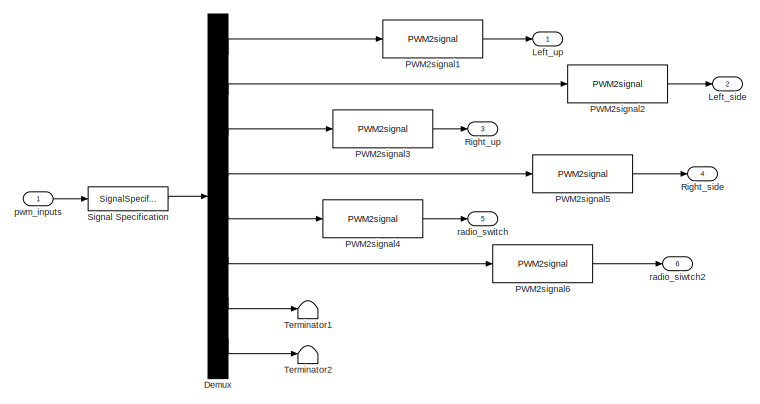
[diagram: Px4_to_simulink input interface - part 1/4, top center region]
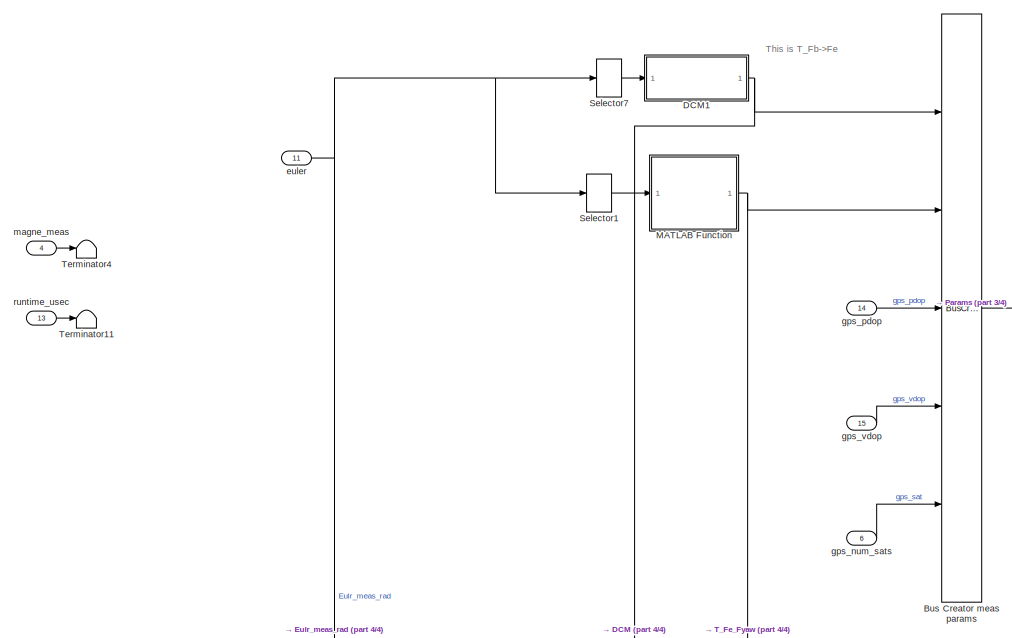
[diagram: Px4_to_simulink input interface - part 2/4, central region]
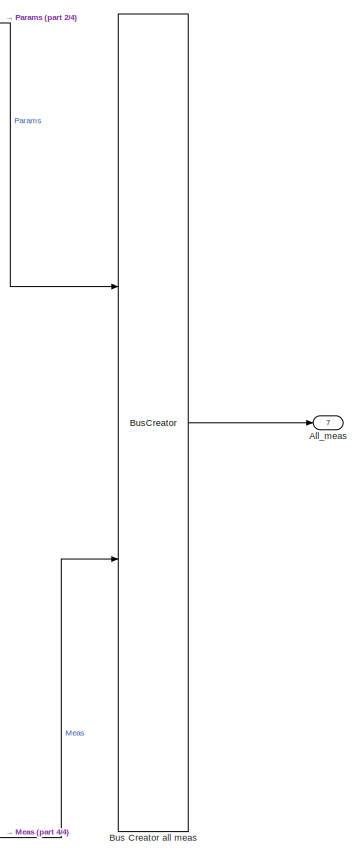
[diagram: Px4_to_simulink input interface - part 3/4, middle right region]
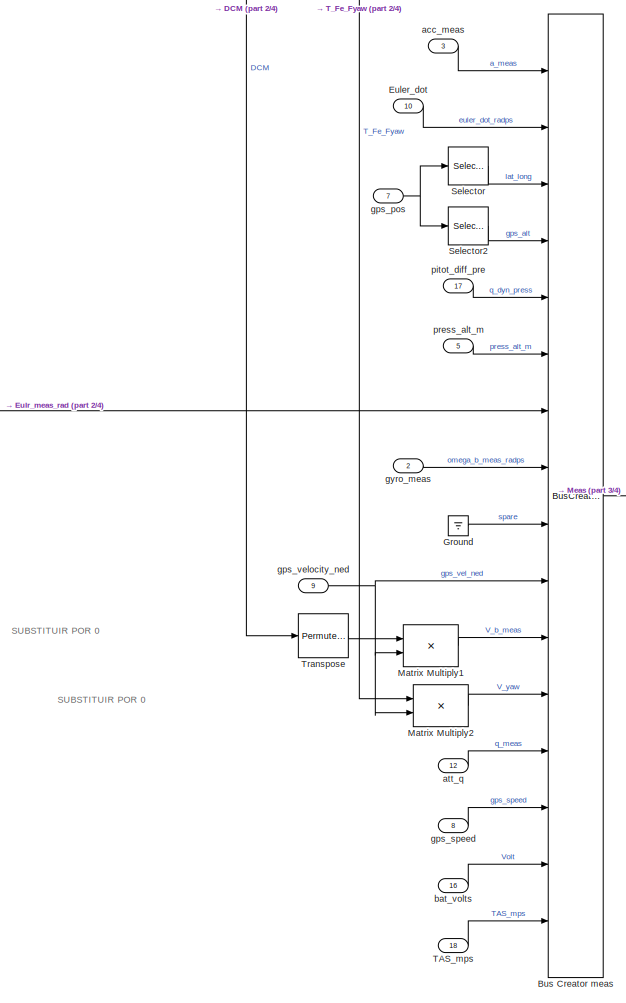
[diagram: Px4_to_simulink input interface - part 4/4, bottom center region]
BLOCK [SubSystem] Px4_to_simulink input interface
  Ports = [18, 7]
  RequestExecContextInheritance = off
BLOCK [Outport] Px4_to_simulink input interface/All_meas
  IconDisplay = Port number
  Port = 7
BLOCK [BusCreator] Px4_to_simulink input interface/Bus Creator all meas
  DisplayOption = bar
  Inputs = 2
  Ports = [2, 1]
BLOCK [BusCreator] Px4_to_simulink input interface/Bus Creator meas
  DisplayOption = bar
  Inputs = 16
  Ports = [16, 1]
BLOCK [BusCreator] Px4_to_simulink input interface/Bus Creator meas params
  DisplayOption = bar
  Inputs = 5
  Ports = [5, 1]
BLOCK [SubSystem] Px4_to_simulink input interface/DCM1
  Ports = [1, 1]
  RequestExecContextInheritance = off
  TreatAsAtomicUnit = on
BLOCK [Outport] Px4_to_simulink input interface/DCM1/DCM
  IconDisplay = Port number
  PortDimensions = [3,3]
BLOCK [Inport] Px4_to_simulink input interface/DCM1/Euler
  IconDisplay = Port number
  PortDimensions = 3
BLOCK [Fcn] Px4_to_simulink input interface/DCM1/Fcn11
  Expr = u(5)*u(4)
BLOCK [Fcn] Px4_to_simulink input interface/DCM1/Fcn12
  Expr = u(5)*u(1)
BLOCK [Fcn] Px4_to_simulink input interface/DCM1/Fcn13
  Expr = -u(2)
BLOCK [Fcn] Px4_to_simulink input interface/DCM1/Fcn21
  Expr = u(3)*u(2)*u(4) - u(6)*u(1)
BLOCK [Fcn] Px4_to_simulink input interface/DCM1/Fcn22
  Expr = u(3)*u(2)*u(1) + u(6)*u(4)
BLOCK [Fcn] Px4_to_simulink input interface/DCM1/Fcn23
  Expr = u(3)*u(5)
BLOCK [Fcn] Px4_to_simulink input interface/DCM1/Fcn31
  Expr = u(6)*u(2)*u(4) + u(3)*u(1)
BLOCK [Fcn] Px4_to_simulink input interface/DCM1/Fcn32
  Expr = u(6)*u(2)*u(1) - u(3)*u(4)
BLOCK [Fcn] Px4_to_simulink input interface/DCM1/Fcn33
  Expr = u(6)*u(5)
BLOCK [Mux] Px4_to_simulink input interface/DCM1/Mux
  DisplayOption = bar
  Inputs = 2
  Ports = [2, 1]
BLOCK [Mux] Px4_to_simulink input interface/DCM1/Mux1
  DisplayOption = bar
  Inputs = 9
  Ports = [9, 1]
BLOCK [Reshape] Px4_to_simulink input interface/DCM1/Reshape
  OutputDimensionality = Customize
  OutputDimensions = [3,3]
  Ports = [1, 1]
BLOCK [Trigonometry] Px4_to_simulink input interface/DCM1/sincos
  Operator = sincos
  Ports = [1, 2]
BLOCK [Demux] Px4_to_simulink input interface/Demux
  DisplayOption = bar
  Outputs = 8
  Ports = [1, 8]
BLOCK [Inport] Px4_to_simulink input interface/Euler_dot
  IconDisplay = Port number
  Port = 10
  PortDimensions = 3
  SampleTime = T_ctrl
BLOCK [Ground] Px4_to_simulink input interface/Ground
BLOCK [Outport] Px4_to_simulink input interface/Left_side
  IconDisplay = Port number
  Port = 2
BLOCK [Outport] Px4_to_simulink input interface/Left_up
  IconDisplay = Port number
BLOCK [SubSystem] Px4_to_simulink input interface/MATLAB Function
  ErrorFcn = Stateflow.Translate.translate
  PermitHierarchicalResolution = ExplicitOnly
  Ports = [1, 1]
  RequestExecContextInheritance = off
  SFBlockType = MATLAB Function
  TreatAsAtomicUnit = on
BLOCK [Demux] Px4_to_simulink input interface/MATLAB Function/ Demux 
  Outputs = 1
  Ports = [1, 1]
BLOCK [S-Function] Px4_to_simulink input interface/MATLAB Function/ SFunction 
  EnableBusSupport = on
  FunctionName = sf_sfun
  PortCounts = [1 2]
  Ports = [1, 2]
  Tag = Stateflow S-Function dbx_control_v0_01 17
BLOCK [Terminator] Px4_to_simulink input interface/MATLAB Function/ Terminator 
BLOCK [Outport] Px4_to_simulink input interface/MATLAB Function/T_yaw
  IconDisplay = Port number
BLOCK [Inport] Px4_to_simulink input interface/MATLAB Function/yaw
  IconDisplay = Port number
BLOCK [Product] Px4_to_simulink input interface/Matrix Multiply1
  InputSameDT = off
  Multiplication = Matrix(*)
  OutDataTypeStr = Inherit: Inherit via internal rule
  Ports = [2, 1]
  RndMeth = Floor
  SaturateOnIntegerOverflow = off
BLOCK [Product] Px4_to_simulink input interface/Matrix Multiply2
  InputSameDT = off
  Multiplication = Matrix(*)
  OutDataTypeStr = Inherit: Inherit via internal rule
  Ports = [2, 1]
  RndMeth = Floor
  SaturateOnIntegerOverflow = off
BLOCK [Reference] Px4_to_simulink input interface/PWM2signal1  REF=DBX_model/PWM2signal
  Ports = [1, 1]
  SourceBlock = DBX_model/PWM2signal
  a = 1000
  b = -1
  c = 2000
  d = 1
BLOCK [Reference] Px4_to_simulink input interface/PWM2signal2  REF=DBX_model/PWM2signal
  Ports = [1, 1]
  SourceBlock = DBX_model/PWM2signal
  a = 1000
  b = -1
  c = 2000
  d = 1
BLOCK [Reference] Px4_to_simulink input interface/PWM2signal3  REF=DBX_model/PWM2signal
  Ports = [1, 1]
  SourceBlock = DBX_model/PWM2signal
  a = 1000
  b = -1
  c = 2000
  d = 1
BLOCK [Reference] Px4_to_simulink input interface/PWM2signal4  REF=DBX_model/PWM2signal
  Ports = [1, 1]
  SourceBlock = DBX_model/PWM2signal
  a = 1000
  b = -1
  c = 2000
  d = 1
BLOCK [Reference] Px4_to_simulink input interface/PWM2signal5  REF=DBX_model/PWM2signal
  Ports = [1, 1]
  SourceBlock = DBX_model/PWM2signal
  a = 1000
  b = -1
  c = 2000
  d = 1
BLOCK [Reference] Px4_to_simulink input interface/PWM2signal6  REF=DBX_model/PWM2signal
  Ports = [1, 1]
  SourceBlock = DBX_model/PWM2signal
  a = 1000
  b = -1
  c = 2000
  d = 1
BLOCK [Outport] Px4_to_simulink input interface/Right_side
  IconDisplay = Port number
  Port = 4
BLOCK [Outport] Px4_to_simulink input interface/Right_up
  IconDisplay = Port number
  Port = 3
BLOCK [Selector] Px4_to_simulink input interface/Selector
  Indices = [1,2]
  InputPortWidth = 3
  Ports = [1, 1]
BLOCK [Selector] Px4_to_simulink input interface/Selector1
  Indices = 3
  InputPortWidth = 3
  Ports = [1, 1]
BLOCK [Selector] Px4_to_simulink input interface/Selector2
  Indices = 3
  InputPortWidth = 3
  Ports = [1, 1]
BLOCK [Selector] Px4_to_simulink input interface/Selector7
  Indices = [3 2 1]
  InputPortWidth = 3
  Ports = [1, 1]
BLOCK [SignalSpecification] Px4_to_simulink input interface/Signal Specification
  Dimensions = 8
BLOCK [Inport] Px4_to_simulink input interface/TAS_mps
  IconDisplay = Port number
  Port = 18
  SampleTime = 0.01
BLOCK [Terminator] Px4_to_simulink input interface/Terminator1
BLOCK [Terminator] Px4_to_simulink input interface/Terminator11
BLOCK [Terminator] Px4_to_simulink input interface/Terminator2
BLOCK [Terminator] Px4_to_simulink input interface/Terminator4
BLOCK [PermuteDimensions] Px4_to_simulink input interface/Transpose
BLOCK [Inport] Px4_to_simulink input interface/acc_meas
  IconDisplay = Port number
  Port = 3
  PortDimensions = 3
  SampleTime = T_ctrl
BLOCK [Inport] Px4_to_simulink input interface/att_q
  IconDisplay = Port number
  Port = 12
  PortDimensions = 4
  SampleTime = T_ctrl
BLOCK [Inport] Px4_to_simulink input interface/bat_volts
  IconDisplay = Port number
  Port = 16
  PortDimensions = 1
  SampleTime = T_ctrl
BLOCK [Inport] Px4_to_simulink input interface/euler
  IconDisplay = Port number
  Port = 11
  PortDimensions = 3
  SampleTime = T_ctrl
BLOCK [Inport] Px4_to_simulink input interface/gps_num_sats
  IconDisplay = Port number
  Port = 6
  PortDimensions = 1
  SampleTime = T_ctrl
BLOCK [Inport] Px4_to_simulink input interface/gps_pdop
  IconDisplay = Port number
  Port = 14
  PortDimensions = 1
  SampleTime = T_ctrl
BLOCK [Inport] Px4_to_simulink input interface/gps_pos
  IconDisplay = Port number
  Port = 7
  PortDimensions = 3
  SampleTime = T_ctrl
BLOCK [Inport] Px4_to_simulink input interface/gps_speed
  IconDisplay = Port number
  Port = 8
  PortDimensions = 1
  SampleTime = T_ctrl
BLOCK [Inport] Px4_to_simulink input interface/gps_vdop
  IconDisplay = Port number
  Port = 15
  PortDimensions = 1
  SampleTime = T_ctrl
BLOCK [Inport] Px4_to_simulink input interface/gps_velocity_ned
  IconDisplay = Port number
  Port = 9
  PortDimensions = 3
  SampleTime = T_ctrl
BLOCK [Inport] Px4_to_simulink input interface/gyro_meas
  IconDisplay = Port number
  Port = 2
  PortDimensions = 3
  SampleTime = T_ctrl
BLOCK [Inport] Px4_to_simulink input interface/magne_meas
  IconDisplay = Port number
  Port = 4
  PortDimensions = 3
  SampleTime = T_ctrl
BLOCK [Inport] Px4_to_simulink input interface/pitot_diff_pre
  IconDisplay = Port number
  Port = 17
  SampleTime = 0.01
BLOCK [Inport] Px4_to_simulink input interface/press_alt_m
  IconDisplay = Port number
  Port = 5
  PortDimensions = 1
  SampleTime = T_ctrl
BLOCK [Inport] Px4_to_simulink input interface/pwm_inputs
  IconDisplay = Port number
  PortDimensions = 8
  SampleTime = T_ctrl
BLOCK [Outport] Px4_to_simulink input interface/radio_siwtch2
  IconDisplay = Port number
  Port = 6
BLOCK [Outport] Px4_to_simulink input interface/radio_switch
  IconDisplay = Port number
  Port = 5
BLOCK [Inport] Px4_to_simulink input interface/runtime_usec
  IconDisplay = Port number
  Port = 13
  PortDimensions = 1
  SampleTime = T_ctrl
BLOCK [Logic] Semi_auto
  AllPortsSameDT = off
  IconShape = distinctive
  OutDataTypeStr = boolean
  Ports = [2, 1]
BLOCK [SignalSpecification] Si gnal Specification5
  Dimensions = [3,1]
  VarSizeSig = No
BLOCK [SignalSpecification] Signal Specification
  Dimensions = [8,1]
  VarSizeSig = No
BLOCK [SignalSpecification] Signal Specification1
  Dimensions = [3,1]
  VarSizeSig = No
BLOCK [SignalSpecification] Signal Specification2
  Dimensions = [3,1]
  VarSizeSig = No
BLOCK [SignalSpecification] Signal Specification3
  Dimensions = [3,1]
  VarSizeSig = No
BLOCK [SignalSpecification] Signal Specification4
  Dimensions = [3,1]
  VarSizeSig = No
BLOCK [SignalSpecification] Signal Specification6
  Dimensions = [3,1]
  VarSizeSig = No
BLOCK [SignalSpecification] Signal Specification7
  Dimensions = [3,1]
  VarSizeSig = No
BLOCK [SignalSpecification] Signal Specification8
  Dimensions = [4,1]
  VarSizeSig = No
BLOCK [Reference] Signal2PWM  REF=DBX_model/Signal2PWM
  Ports = [1, 1]
  SourceBlock = DBX_model/Signal2PWM
  a = 1900
  b = 1
  c = 1100
  d = 0
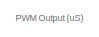
[diagram: Simulink_to_Px4 interface - part 1/2, top right region]
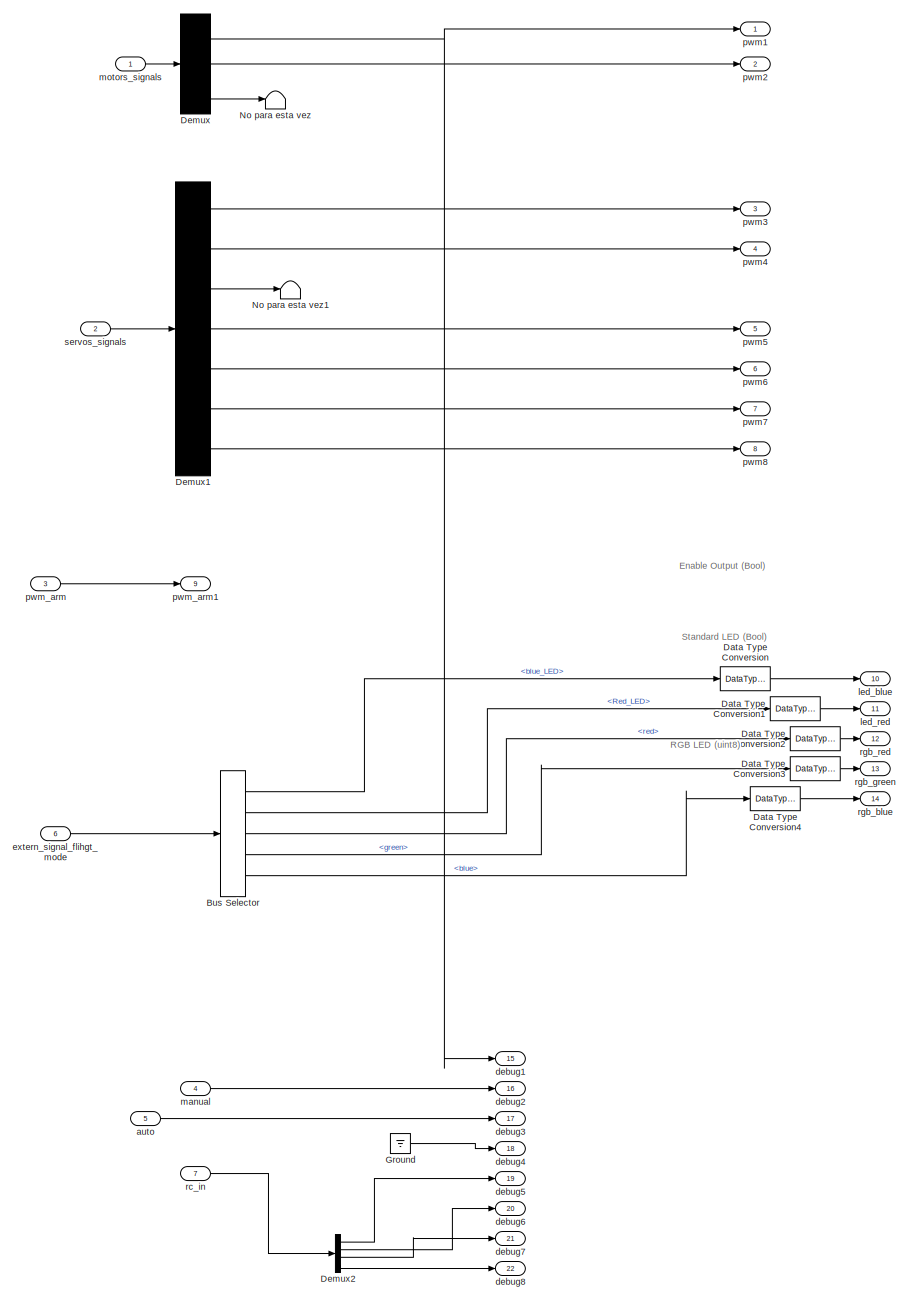
[diagram: Simulink_to_Px4 interface - part 2/2, most of the canvas]
BLOCK [SubSystem] Simulink_to_Px4 interface
  Ports = [7, 22]
  RequestExecContextInheritance = off
BLOCK [BusSelector] Simulink_to_Px4 interface/Bus Selector
  OutputSignals = blue_LED,Red_LED,RGBLED.red,RGBLED.green,RGBLED.blue
  Ports = [1, 5]
BLOCK [DataTypeConversion] Simulink_to_Px4 interface/Data Type Conversion
  OutDataTypeStr = boolean
  RndMeth = Floor
  SaturateOnIntegerOverflow = off
BLOCK [DataTypeConversion] Simulink_to_Px4 interface/Data Type Conversion1
  OutDataTypeStr = boolean
  RndMeth = Floor
  SaturateOnIntegerOverflow = off
BLOCK [DataTypeConversion] Simulink_to_Px4 interface/Data Type Conversion2
  OutDataTypeStr = uint8
  RndMeth = Floor
  SaturateOnIntegerOverflow = off
BLOCK [DataTypeConversion] Simulink_to_Px4 interface/Data Type Conversion3
  OutDataTypeStr = uint8
  RndMeth = Floor
  SaturateOnIntegerOverflow = off
BLOCK [DataTypeConversion] Simulink_to_Px4 interface/Data Type Conversion4
  OutDataTypeStr = uint8
  RndMeth = Floor
  SaturateOnIntegerOverflow = off
BLOCK [Demux] Simulink_to_Px4 interface/Demux
  DisplayOption = bar
  Outputs = 3
  Ports = [1, 3]
BLOCK [Demux] Simulink_to_Px4 interface/Demux1
  DisplayOption = bar
  Outputs = 7
  Ports = [1, 7]
BLOCK [Demux] Simulink_to_Px4 interface/Demux2
  DisplayOption = bar
  Ports = [1, 4]
BLOCK [Ground] Simulink_to_Px4 interface/Ground
BLOCK [Terminator] Simulink_to_Px4 interface/No para esta vez
BLOCK [Terminator] Simulink_to_Px4 interface/No para esta vez1
BLOCK [Inport] Simulink_to_Px4 interface/auto
  IconDisplay = Port number
  Port = 5
BLOCK [Outport] Simulink_to_Px4 interface/debug1
  IconDisplay = Port number
  Port = 15
  PortDimensions = 1
  SampleTime = T_ctrl
BLOCK [Outport] Simulink_to_Px4 interface/debug2
  IconDisplay = Port number
  Port = 16
  PortDimensions = 1
  SampleTime = T_ctrl
BLOCK [Outport] Simulink_to_Px4 interface/debug3
  IconDisplay = Port number
  Port = 17
  PortDimensions = 1
  SampleTime = T_ctrl
BLOCK [Outport] Simulink_to_Px4 interface/debug4
  IconDisplay = Port number
  Port = 18
  PortDimensions = 1
  SampleTime = T_ctrl
BLOCK [Outport] Simulink_to_Px4 interface/debug5
  IconDisplay = Port number
  Port = 19
  PortDimensions = 1
  SampleTime = T_ctrl
BLOCK [Outport] Simulink_to_Px4 interface/debug6
  IconDisplay = Port number
  Port = 20
  PortDimensions = 1
  SampleTime = T_ctrl
BLOCK [Outport] Simulink_to_Px4 interface/debug7
  IconDisplay = Port number
  Port = 21
  PortDimensions = 1
  SampleTime = T_ctrl
BLOCK [Outport] Simulink_to_Px4 interface/debug8
  IconDisplay = Port number
  Port = 22
  PortDimensions = 1
  SampleTime = T_ctrl
BLOCK [Inport] Simulink_to_Px4 interface/extern_signal_flihgt_mode
  IconDisplay = Port number
  Port = 6
BLOCK [Outport] Simulink_to_Px4 interface/led_blue
  IconDisplay = Port number
  OutDataTypeStr = boolean
  Port = 10
  PortDimensions = 1
  SampleTime = T_ctrl
BLOCK [Outport] Simulink_to_Px4 interface/led_red
  IconDisplay = Port number
  OutDataTypeStr = boolean
  Port = 11
  PortDimensions = 1
  SampleTime = T_ctrl
BLOCK [Inport] Simulink_to_Px4 interface/manual
  IconDisplay = Port number
  Port = 4
BLOCK [Inport] Simulink_to_Px4 interface/motors_signals
  IconDisplay = Port number
BLOCK [Outport] Simulink_to_Px4 interface/pwm1
  IconDisplay = Port number
  PortDimensions = 1
  SampleTime = T_ctrl
BLOCK [Outport] Simulink_to_Px4 interface/pwm2
  IconDisplay = Port number
  Port = 2
  PortDimensions = 1
  SampleTime = T_ctrl
BLOCK [Outport] Simulink_to_Px4 interface/pwm3
  IconDisplay = Port number
  Port = 3
  PortDimensions = 1
  SampleTime = T_ctrl
BLOCK [Outport] Simulink_to_Px4 interface/pwm4
  IconDisplay = Port number
  Port = 4
  PortDimensions = 1
  SampleTime = T_ctrl
BLOCK [Outport] Simulink_to_Px4 interface/pwm5
  IconDisplay = Port number
  Port = 5
  PortDimensions = 1
  SampleTime = T_ctrl
BLOCK [Outport] Simulink_to_Px4 interface/pwm6
  IconDisplay = Port number
  Port = 6
  PortDimensions = 1
  SampleTime = T_ctrl
BLOCK [Outport] Simulink_to_Px4 interface/pwm7
  IconDisplay = Port number
  Port = 7
  PortDimensions = 1
  SampleTime = T_ctrl
BLOCK [Outport] Simulink_to_Px4 interface/pwm8
  IconDisplay = Port number
  Port = 8
  PortDimensions = 1
  SampleTime = T_ctrl
BLOCK [Inport] Simulink_to_Px4 interface/pwm_arm
  IconDisplay = Port number
  Port = 3
BLOCK [Outport] Simulink_to_Px4 interface/pwm_arm1
  IconDisplay = Port number
  Port = 9
  PortDimensions = 1
  SampleTime = T_ctrl
BLOCK [Inport] Simulink_to_Px4 interface/rc_in
  IconDisplay = Port number
  Port = 7
BLOCK [Outport] Simulink_to_Px4 interface/rgb_blue
  IconDisplay = Port number
  OutDataTypeStr = uint8
  Port = 14
  PortDimensions = 1
  SampleTime = T_ctrl
BLOCK [Outport] Simulink_to_Px4 interface/rgb_green
  IconDisplay = Port number
  OutDataTypeStr = uint8
  Port = 13
  PortDimensions = 1
  SampleTime = T_ctrl
BLOCK [Outport] Simulink_to_Px4 interface/rgb_red
  IconDisplay = Port number
  OutDataTypeStr = uint8
  Port = 12
  PortDimensions = 1
  SampleTime = T_ctrl
BLOCK [Inport] Simulink_to_Px4 interface/servos_signals
  IconDisplay = Port number
  Port = 2
BLOCK [SubSystem] Status signals
  Ports = [2, 6]
  RequestExecContextInheritance = off
  TreatAsAtomicUnit = on
BLOCK [Outport] Status signals/Beep
  IconDisplay = Port number
BLOCK [Ground] Status signals/Ground
BLOCK [Ground] Status signals/Ground1
BLOCK [Outport] Status signals/Red_LED
  IconDisplay = Port number
  Port = 2
BLOCK [Outport] Status signals/Red_RGBLED
  IconDisplay = Port number
  Port = 5
BLOCK [Inport] Status signals/auto
  IconDisplay = Port number
  Port = 2
BLOCK [Outport] Status signals/blue_LED
  IconDisplay = Port number
  Port = 3
BLOCK [Outport] Status signals/blue_RGBLED
  IconDisplay = Port number
  Port = 4
BLOCK [Outport] Status signals/green_RGBLED
  IconDisplay = Port number
  Port = 6
BLOCK [Inport] Status signals/manual
  IconDisplay = Port number
BLOCK [Switch] Switch motores
  Criteria = u2 > Threshold
  InputSameDT = off
  SaturateOnIntegerOverflow = off
  Threshold = 0.5
BLOCK [Switch] Switch motores servos
  Criteria = u2 > Threshold
  InputSameDT = off
  SaturateOnIntegerOverflow = off
  Threshold = 0.5
BLOCK [Inport] TAS_mps
  IconDisplay = Port number
  Port = 42
  SampleTime = 0.01
BLOCK [Inport] acc_x
  IconDisplay = Port number
  Port = 12
  PortDimensions = [1,1]
  SampleTime = T_ctrl
  VarSizeSig = No
BLOCK [Inport] acc_y
  IconDisplay = Port number
  Port = 13
  PortDimensions = [1,1]
  SampleTime = T_ctrl
  VarSizeSig = No
BLOCK [Inport] acc_z
  IconDisplay = Port number
  Port = 14
  PortDimensions = [1,1]
  SampleTime = T_ctrl
  VarSizeSig = No
BLOCK [Inport] att_pitch
  IconDisplay = Port number
  Port = 31
  PortDimensions = [1,1]
  SampleTime = T_ctrl
  VarSizeSig = No
BLOCK [Inport] att_roll
  IconDisplay = Port number
  Port = 30
  PortDimensions = [1,1]
  SampleTime = T_ctrl
  VarSizeSig = No
BLOCK [Inport] att_yaw
  IconDisplay = Port number
  Port = 32
  PortDimensions = [1,1]
  SampleTime = T_ctrl
  VarSizeSig = No
BLOCK [Inport] baro_alt
  IconDisplay = Port number
  Port = 18
  PortDimensions = [1,1]
  SampleTime = T_ctrl
  VarSizeSig = No
BLOCK [Inport] bat_volts
  IconDisplay = Port number
  Port = 40
  PortDimensions = [1,1]
  SampleTime = T_ctrl
  VarSizeSig = No
BLOCK [Inport] ch1
  IconDisplay = Port number
  PortDimensions = [1,1]
  SampleTime = T_ctrl
  VarSizeSig = No
BLOCK [Inport] ch2
  IconDisplay = Port number
  Port = 2
  PortDimensions = [1,1]
  SampleTime = T_ctrl
  VarSizeSig = No
BLOCK [Inport] ch3
  IconDisplay = Port number
  Port = 3
  PortDimensions = [1,1]
  SampleTime = T_ctrl
  VarSizeSig = No
BLOCK [Inport] ch4
  IconDisplay = Port number
  Port = 4
  PortDimensions = [1,1]
  SampleTime = T_ctrl
  VarSizeSig = No
BLOCK [Inport] ch5
  IconDisplay = Port number
  Port = 5
  PortDimensions = [1,1]
  SampleTime = T_ctrl
  VarSizeSig = No
BLOCK [Inport] ch6
  IconDisplay = Port number
  Port = 6
  PortDimensions = [1,1]
  SampleTime = T_ctrl
  VarSizeSig = No
BLOCK [Inport] ch7
  IconDisplay = Port number
  Port = 7
  PortDimensions = [1,1]
  SampleTime = T_ctrl
  VarSizeSig = No
BLOCK [Inport] ch8
  IconDisplay = Port number
  Port = 8
  PortDimensions = [1,1]
  SampleTime = T_ctrl
  VarSizeSig = No
BLOCK [Outport] debug1
  IconDisplay = Port number
  Port = 15
  PortDimensions = [1,1]
  VarSizeSig = No
BLOCK [Outport] debug2
  IconDisplay = Port number
  Port = 16
  PortDimensions = [1,1]
  VarSizeSig = No
BLOCK [Outport] debug3
  IconDisplay = Port number
  Port = 17
  PortDimensions = [1,1]
  VarSizeSig = No
BLOCK [Outport] debug4
  IconDisplay = Port number
  Port = 18
  PortDimensions = [1,1]
  VarSizeSig = No
BLOCK [Outport] debug5
  IconDisplay = Port number
  Port = 19
  PortDimensions = [1,1]
  VarSizeSig = No
BLOCK [Outport] debug6
  IconDisplay = Port number
  Port = 20
  PortDimensions = [1,1]
  VarSizeSig = No
BLOCK [Outport] debug7
  IconDisplay = Port number
  Port = 21
  PortDimensions = [1,1]
  VarSizeSig = No
BLOCK [Outport] debug8
  IconDisplay = Port number
  Port = 22
  PortDimensions = [1,1]
  VarSizeSig = No
BLOCK [Inport] gps_alt
  IconDisplay = Port number
  Port = 22
  PortDimensions = [1,1]
  SampleTime = T_ctrl
  VarSizeSig = No
BLOCK [Inport] gps_lat
  IconDisplay = Port number
  Port = 20
  PortDimensions = [1,1]
  SampleTime = T_ctrl
  VarSizeSig = No
BLOCK [Inport] gps_lon
  IconDisplay = Port number
  Port = 21
  PortDimensions = [1,1]
  SampleTime = T_ctrl
  VarSizeSig = No
BLOCK [Inport] gps_pdop
  IconDisplay = Port number
  Port = 38
  PortDimensions = [1,1]
  SampleTime = T_ctrl
  VarSizeSig = No
BLOCK [Inport] gps_sat
  IconDisplay = Port number
  Port = 19
  PortDimensions = [1,1]
  SampleTime = T_ctrl
  VarSizeSig = No
BLOCK [Inport] gps_vdop
  IconDisplay = Port number
  Port = 39
  PortDimensions = [1,1]
  SampleTime = T_ctrl
  VarSizeSig = No
BLOCK [Inport] gps_vel
  IconDisplay = Port number
  Port = 23
  PortDimensions = [1,1]
  SampleTime = T_ctrl
BLOCK [Inport] gps_vel_d
  IconDisplay = Port number
  Port = 26
  PortDimensions = [1,1]
  SampleTime = T_ctrl
  VarSizeSig = No
BLOCK [Inport] gps_vel_e
  IconDisplay = Port number
  Port = 25
  PortDimensions = [1,1]
  SampleTime = T_ctrl
  VarSizeSig = No
BLOCK [Inport] gps_vel_n
  IconDisplay = Port number
  Port = 24
  PortDimensions = [1,1]
  SampleTime = T_ctrl
  VarSizeSig = No
BLOCK [Inport] gyro_x
  IconDisplay = Port number
  Port = 9
  PortDimensions = [1,1]
  SampleTime = T_ctrl
  VarSizeSig = No
BLOCK [Inport] gyro_y
  IconDisplay = Port number
  Port = 10
  PortDimensions = [1,1]
  SampleTime = T_ctrl
  VarSizeSig = No
BLOCK [Inport] gyro_z
  IconDisplay = Port number
  Port = 11
  PortDimensions = [1,1]
  SampleTime = T_ctrl
  VarSizeSig = No
BLOCK [Outport] led_blue
  IconDisplay = Port number
  OutDataTypeStr = boolean
  Port = 10
  PortDimensions = [1,1]
  VarSizeSig = No
BLOCK [Outport] led_red
  IconDisplay = Port number
  OutDataTypeStr = boolean
  Port = 11
  PortDimensions = [1,1]
  VarSizeSig = No
BLOCK [Inport] mag_x
  IconDisplay = Port number
  Port = 15
  PortDimensions = [1,1]
  SampleTime = T_ctrl
  VarSizeSig = No
BLOCK [Inport] mag_y
  IconDisplay = Port number
  Port = 16
  PortDimensions = [1,1]
  SampleTime = T_ctrl
  VarSizeSig = No
BLOCK [Inport] mag_z
  IconDisplay = Port number
  Port = 17
  PortDimensions = [1,1]
  SampleTime = T_ctrl
  VarSizeSig = No
BLOCK [Logic] manual
  AllPortsSameDT = off
  IconShape = distinctive
  OutDataTypeStr = boolean
  Ports = [2, 1]
BLOCK [Inport] pitot_diff_pre
  IconDisplay = Port number
  Port = 41
  SampleTime = 0.01
BLOCK [Outport] pwm1
  IconDisplay = Port number
  PortDimensions = [1,1]
  VarSizeSig = No
BLOCK [Outport] pwm2
  IconDisplay = Port number
  Port = 2
  PortDimensions = [1,1]
  VarSizeSig = No
BLOCK [Outport] pwm3
  IconDisplay = Port number
  Port = 3
  PortDimensions = [1,1]
  VarSizeSig = No
BLOCK [Outport] pwm4
  IconDisplay = Port number
  Port = 4
  PortDimensions = [1,1]
  VarSizeSig = No
BLOCK [Outport] pwm5
  IconDisplay = Port number
  Port = 5
  PortDimensions = [1,1]
  VarSizeSig = No
BLOCK [Outport] pwm6
  IconDisplay = Port number
  Port = 6
  PortDimensions = [1,1]
  VarSizeSig = No
BLOCK [Outport] pwm7
  IconDisplay = Port number
  Port = 7
  PortDimensions = [1,1]
  VarSizeSig = No
BLOCK [Outport] pwm8
  IconDisplay = Port number
  Port = 8
  PortDimensions = [1,1]
  VarSizeSig = No
BLOCK [Outport] pwm_arm
  IconDisplay = Port number
  Port = 9
  PortDimensions = [1,1]
  VarSizeSig = No
BLOCK [Inport] q0
  IconDisplay = Port number
  Port = 33
  PortDimensions = [1,1]
  SampleTime = T_ctrl
  VarSizeSig = No
BLOCK [Inport] q1
  IconDisplay = Port number
  Port = 34
  PortDimensions = [1,1]
  SampleTime = T_ctrl
  VarSizeSig = No
BLOCK [Inport] q2
  IconDisplay = Port number
  Port = 35
  PortDimensions = [1,1]
  SampleTime = T_ctrl
  VarSizeSig = No
BLOCK [Inport] q3
  IconDisplay = Port number
  Port = 36
  PortDimensions = [1,1]
  SampleTime = T_ctrl
  VarSizeSig = No
BLOCK [Inport] rate_pitch
  IconDisplay = Port number
  Port = 28
  PortDimensions = [1,1]
  SampleTime = T_ctrl
  VarSizeSig = No
BLOCK [Inport] rate_roll
  IconDisplay = Port number
  Port = 27
  PortDimensions = [1,1]
  SampleTime = T_ctrl
  VarSizeSig = No
BLOCK [Inport] rate_yaw
  IconDisplay = Port number
  Port = 29
  PortDimensions = [1,1]
  SampleTime = T_ctrl
  VarSizeSig = No
BLOCK [Outport] rgb_blue
  IconDisplay = Port number
  OutDataTypeStr = uint8
  Port = 14
  PortDimensions = [1,1]
  VarSizeSig = No
BLOCK [Outport] rgb_green
  IconDisplay = Port number
  OutDataTypeStr = uint8
  Port = 13
  PortDimensions = [1,1]
  VarSizeSig = No
BLOCK [Outport] rgb_red
  IconDisplay = Port number
  OutDataTypeStr = uint8
  Port = 12
  PortDimensions = [1,1]
  VarSizeSig = No
BLOCK [Inport] runtime
  IconDisplay = Port number
  Port = 37
  PortDimensions = [1,1]
  SampleTime = T_ctrl
  VarSizeSig = No
ANNOTATION (root): Enable Output (Bool)
ANNOTATION (root): PWM Output (uS)
ANNOTATION (root): RGB LED (uint8)
ANNOTATION (root): Standard LED (Bool)
ANNOTATION (root): Terminal Debug Output
ANNOTATION Auto-mode autopiloto: Control outputs: 7. Rudervator Left (rad) 8. Rudervator Right (rad) 9. Aileron Left (rad) 10. Aielron Right (rad)
ANNOTATION Auto-mode autopiloto/Autopilot: Altitude Hold
ANNOTATION Auto-mode autopiloto/Autopilot: Velocity Hold
ANNOTATION Auto-mode autopiloto/Deflex de-mixer: Control outputs: 7. Rudervator Left (rad) 8. Rudervator Right (rad) 9. Aileron Left (rad) 10. Aielron Right (rad)
ANNOTATION Auto-mode autopiloto/radio2signals conversion: -1 to 1
ANNOTATION Build Servos PWM: Estos 4 ultimos significa que los ejes de los servos deben apuntar el la direccion +y
ANNOTATION Build Servos PWM: Control input Rango Direccion rot/Dir servos Rango del servo eta_1 (rad) (Pan arm 1) -90,90 -1 180 eta_2 (rad) (Pan arm 2 -90,90 -1 180 eta_3 (rad) (Pan arm 3) -90,90 1 180 Rudervator Left (rad) -90,90 1 180 Rudervator Right (rad) -90,90 1 180 Aileron Left (rad) -90,90 1 180 Aielron Right (rad) -90,90 1 180
ANNOTATION Manual flight mode: Control outputs: 7. Rudervator Left (rad) 8. Rudervator Right (rad) 9. Aileron Left (rad) 10. Aielron Right (rad)
ANNOTATION Manual flight mode/Deflex de-mixer: Control outputs: 7. Rudervator Left (rad) 8. Rudervator Right (rad) 9. Aileron Left (rad) 10. Aielron Right (rad)
ANNOTATION Px4_to_simulink input interface: SUBSTITUIR POR 0
ANNOTATION Px4_to_simulink input interface: This is T_Fb->Fe
ANNOTATION Simulink_to_Px4 interface: Enable Output (Bool)
ANNOTATION Simulink_to_Px4 interface: PWM Output (uS)
ANNOTATION Simulink_to_Px4 interface: RGB LED (uint8)
ANNOTATION Simulink_to_Px4 interface: Standard LED (Bool)
NET Auto-mode autopiloto/All_meas:1 -> Auto-mode autopiloto/Attitude controller:1, Auto-mode autopiloto/Autopilot:1, Auto-mode autopiloto/Bus Selector1:1, Auto-mode autopiloto/Bus Selector:1, Auto-mode autopiloto/radio2signals conversion:2, Auto-mode autopiloto/rate controller:1
LINE Auto-mode autopiloto/Attitude controller/  :1 -> Auto-mode autopiloto/Attitude controller/Sum:1
LINE Auto-mode autopiloto/Attitude controller/ :1 -> Auto-mode autopiloto/Attitude controller/Sum2:2
LINE Auto-mode autopiloto/Attitude controller/All_meas:1 -> Auto-mode autopiloto/Attitude controller/Bus Selector:1
LINE Auto-mode autopiloto/Attitude controller/Bus Creator:1 -> Auto-mode autopiloto/Attitude controller/rate demands:1
LINE Auto-mode autopiloto/Attitude controller/Bus Selector1:1 -> Auto-mode autopiloto/Attitude controller/Sum3:1
LINE Auto-mode autopiloto/Attitude controller/Bus Selector1:2 -> Auto-mode autopiloto/Attitude controller/Sum1:1
LINE Auto-mode autopiloto/Attitude controller/Bus Selector1:3 -> Auto-mode autopiloto/Attitude controller/Bus Creator:3
LINE Auto-mode autopiloto/Attitude controller/Bus Selector:1 -> Auto-mode autopiloto/Attitude controller/Demux1:1
LINE Auto-mode autopiloto/Attitude controller/Demux1:1 -> Auto-mode autopiloto/Attitude controller/Sum1:2
LINE Auto-mode autopiloto/Attitude controller/Demux1:2 -> Auto-mode autopiloto/Attitude controller/Sum3:2
LINE Auto-mode autopiloto/Attitude controller/Demux1:3 -> Auto-mode autopiloto/Attitude controller/Terminator5:1
LINE Auto-mode autopiloto/Attitude controller/Discrete-Time Integrator1:1 -> Auto-mode autopiloto/Attitude controller/Sum:2
LINE Auto-mode autopiloto/Attitude controller/Discrete-Time Integrator:1 -> Auto-mode autopiloto/Attitude controller/Sum2:1
LINE Auto-mode autopiloto/Attitude controller/Gain1:1 -> Auto-mode autopiloto/Attitude controller/Sum5:1
LINE Auto-mode autopiloto/Attitude controller/Gain2:1 -> Auto-mode autopiloto/Attitude controller/Sum9:2
NET Auto-mode autopiloto/Attitude controller/Sum1:1 -> Auto-mode autopiloto/Attitude controller/  :1, Auto-mode autopiloto/Attitude controller/Gain1:1
NET Auto-mode autopiloto/Attitude controller/Sum2:1 -> Auto-mode autopiloto/Attitude controller/Sum4:2, Auto-mode autopiloto/Attitude controller/q sat:1
NET Auto-mode autopiloto/Attitude controller/Sum3:1 -> Auto-mode autopiloto/Attitude controller/ :1, Auto-mode autopiloto/Attitude controller/Gain2:1
LINE Auto-mode autopiloto/Attitude controller/Sum4:1 -> Auto-mode autopiloto/Attitude controller/anti windup:1
LINE Auto-mode autopiloto/Attitude controller/Sum5:1 -> Auto-mode autopiloto/Attitude controller/Discrete-Time Integrator1:1
LINE Auto-mode autopiloto/Attitude controller/Sum6:1 -> Auto-mode autopiloto/Attitude controller/Sum5:2
LINE Auto-mode autopiloto/Attitude controller/Sum9:1 -> Auto-mode autopiloto/Attitude controller/Discrete-Time Integrator:1
NET Auto-mode autopiloto/Attitude controller/Sum:1 -> Auto-mode autopiloto/Attitude controller/Sum6:1, Auto-mode autopiloto/Attitude controller/p sat:1
LINE Auto-mode autopiloto/Attitude controller/anti windup:1 -> Auto-mode autopiloto/Attitude controller/Sum9:1
LINE Auto-mode autopiloto/Attitude controller/attitude demands:1 -> Auto-mode autopiloto/Attitude controller/Bus Selector1:1
NET Auto-mode autopiloto/Attitude controller/p sat:1 -> Auto-mode autopiloto/Attitude controller/Bus Creator:2, Auto-mode autopiloto/Attitude controller/Sum6:2
NET Auto-mode autopiloto/Attitude controller/q sat:1 -> Auto-mode autopiloto/Attitude controller/Bus Creator:1, Auto-mode autopiloto/Attitude controller/Sum4:1
LINE Auto-mode autopiloto/Attitude controller:1 -> Auto-mode autopiloto/rate controller:2
LINE Auto-mode autopiloto/Autopilot/All_meas:1 -> Auto-mode autopiloto/Autopilot/Bus Selector:1
LINE Auto-mode autopiloto/Autopilot/Bus Creator:1 -> Auto-mode autopiloto/Autopilot/attitude_des_rad:1
LINE Auto-mode autopiloto/Autopilot/Bus Selector:1 -> Auto-mode autopiloto/Autopilot/Sum7:2
LINE Auto-mode autopiloto/Autopilot/Bus Selector:2 -> Auto-mode autopiloto/Autopilot/Selector:1
LINE Auto-mode autopiloto/Autopilot/Bus Selector:3 -> Auto-mode autopiloto/Autopilot/Sum3:2
LINE Auto-mode autopiloto/Autopilot/Discrete-Time Integrator1:1 -> Auto-mode autopiloto/Autopilot/Sum2:2
LINE Auto-mode autopiloto/Autopilot/Discrete-Time Integrator:1 -> Auto-mode autopiloto/Autopilot/Sum8:1
LINE Auto-mode autopiloto/Autopilot/K1:1 -> Auto-mode autopiloto/Autopilot/Sum8:3
LINE Auto-mode autopiloto/Autopilot/K2:1 -> Auto-mode autopiloto/Autopilot/Sum1:2
LINE Auto-mode autopiloto/Autopilot/KZe1:1 -> Auto-mode autopiloto/Autopilot/Sum1:1
LINE Auto-mode autopiloto/Autopilot/KZe:1 -> Auto-mode autopiloto/Autopilot/Sum8:2
LINE Auto-mode autopiloto/Autopilot/Ki2:1 -> Auto-mode autopiloto/Autopilot/Sum5:1
LINE Auto-mode autopiloto/Autopilot/Kthrottle1:1 -> Auto-mode autopiloto/Autopilot/Sum5:2
LINE Auto-mode autopiloto/Autopilot/Kthrottle2:1 -> Auto-mode autopiloto/Autopilot/Sum2:1
NET Auto-mode autopiloto/Autopilot/Saturation Throttle:1 -> Auto-mode autopiloto/Autopilot/Bus Creator:3, Auto-mode autopiloto/Autopilot/Sum6:2
LINE Auto-mode autopiloto/Autopilot/Selector:1 -> Auto-mode autopiloto/Autopilot/Unary Minus:1
LINE Auto-mode autopiloto/Autopilot/Sum1:1 -> Auto-mode autopiloto/Autopilot/Discrete-Time Integrator:1
NET Auto-mode autopiloto/Autopilot/Sum2:1 -> Auto-mode autopiloto/Autopilot/Saturation Throttle:1, Auto-mode autopiloto/Autopilot/Sum6:1
NET Auto-mode autopiloto/Autopilot/Sum3:1 -> Auto-mode autopiloto/Autopilot/Ki2:1, Auto-mode autopiloto/Autopilot/Kthrottle2:1
LINE Auto-mode autopiloto/Autopilot/Sum4:1 -> Auto-mode autopiloto/Autopilot/KZe1:1
LINE Auto-mode autopiloto/Autopilot/Sum5:1 -> Auto-mode autopiloto/Autopilot/Discrete-Time Integrator1:1
LINE Auto-mode autopiloto/Autopilot/Sum6:1 -> Auto-mode autopiloto/Autopilot/Kthrottle1:1
NET Auto-mode autopiloto/Autopilot/Sum7:1 -> Auto-mode autopiloto/Autopilot/K2:1, Auto-mode autopiloto/Autopilot/KZe:1
NET Auto-mode autopiloto/Autopilot/Sum8:1 -> Auto-mode autopiloto/Autopilot/Sum4:2, Auto-mode autopiloto/Autopilot/theta sat:1
LINE Auto-mode autopiloto/Autopilot/Unary Minus:1 -> Auto-mode autopiloto/Autopilot/K1:1
LINE Auto-mode autopiloto/Autopilot/V_d:1 -> Auto-mode autopiloto/Autopilot/Sum3:1
LINE Auto-mode autopiloto/Autopilot/h_des_m:1 -> Auto-mode autopiloto/Autopilot/Sum7:1
LINE Auto-mode autopiloto/Autopilot/phi_des_rad:1 -> Auto-mode autopiloto/Autopilot/Bus Creator:2
NET Auto-mode autopiloto/Autopilot/theta sat:1 -> Auto-mode autopiloto/Autopilot/Bus Creator:1, Auto-mode autopiloto/Autopilot/Sum4:1
LINE Auto-mode autopiloto/Autopilot:1 -> Auto-mode autopiloto/Attitude controller:2
LINE Auto-mode autopiloto/Bus Selector1:1 -> Auto-mode autopiloto/ESC-sacling:2
LINE Auto-mode autopiloto/Bus Selector:1 -> Auto-mode autopiloto/Sample&Hold:1
LINE Auto-mode autopiloto/Deflex de-mixer/Add1:1 -> Auto-mode autopiloto/Deflex de-mixer/delta_rv_R:1
LINE Auto-mode autopiloto/Deflex de-mixer/Add2:1 -> Auto-mode autopiloto/Deflex de-mixer/delta_a_L:1
LINE Auto-mode autopiloto/Deflex de-mixer/Add3:1 -> Auto-mode autopiloto/Deflex de-mixer/delta_a_R:1
LINE Auto-mode autopiloto/Deflex de-mixer/Add:1 -> Auto-mode autopiloto/Deflex de-mixer/delta_rv_L:1
NET Auto-mode autopiloto/Deflex de-mixer/delta_ail_Asim:1 -> Auto-mode autopiloto/Deflex de-mixer/Add2:1, Auto-mode autopiloto/Deflex de-mixer/Add3:1
NET Auto-mode autopiloto/Deflex de-mixer/delta_ail_sim:1 -> Auto-mode autopiloto/Deflex de-mixer/Add2:2, Auto-mode autopiloto/Deflex de-mixer/Add3:2
NET Auto-mode autopiloto/Deflex de-mixer/delta_rv_Asim:1 -> Auto-mode autopiloto/Deflex de-mixer/Add1:1, Auto-mode autopiloto/Deflex de-mixer/Add:1
NET Auto-mode autopiloto/Deflex de-mixer/delta_rv_sim:1 -> Auto-mode autopiloto/Deflex de-mixer/Add1:2, Auto-mode autopiloto/Deflex de-mixer/Add:2
LINE Auto-mode autopiloto/Deflex de-mixer:1 -> Auto-mode autopiloto/Sup2Servo Lin conversion3:1
LINE Auto-mode autopiloto/Deflex de-mixer:2 -> Auto-mode autopiloto/Sup2Servo Lin conversion4:1
LINE Auto-mode autopiloto/Deflex de-mixer:3 -> Auto-mode autopiloto/Sup2Servo Lin conversion5:1
LINE Auto-mode autopiloto/Deflex de-mixer:4 -> Auto-mode autopiloto/Sup2Servo Lin conversion6:1
LINE Auto-mode autopiloto/Demux:1 -> Auto-mode autopiloto/Deflex de-mixer:1
LINE Auto-mode autopiloto/Demux:2 -> Auto-mode autopiloto/Deflex de-mixer:2
LINE Auto-mode autopiloto/Demux:3 -> Auto-mode autopiloto/Deflex de-mixer:3
NET Auto-mode autopiloto/ESC-sacling1:1 -> Auto-mode autopiloto/Mux:1, Auto-mode autopiloto/Mux:2
LINE Auto-mode autopiloto/ESC-sacling:1 -> Auto-mode autopiloto/ESC-sacling1:1
LINE Auto-mode autopiloto/Enable:1 -> Auto-mode autopiloto/Unit Delay:1
LINE Auto-mode autopiloto/Ground1:1 -> Auto-mode autopiloto/Sup2Servo Lin conversion2:1
LINE Auto-mode autopiloto/Ground:1 -> Auto-mode autopiloto/Mux:3
LINE Auto-mode autopiloto/Matrix Multiply2:1 -> Auto-mode autopiloto/Demux:1
NET Auto-mode autopiloto/Mots_orient:1 -> Auto-mode autopiloto/Sup2Servo Lin conversion1:1, Auto-mode autopiloto/Sup2Servo Lin conversion:1
LINE Auto-mode autopiloto/Mux1:1 -> Auto-mode autopiloto/Saturation1:1
LINE Auto-mode autopiloto/Mux2:1 -> Auto-mode autopiloto/Matrix Multiply2:2
LINE Auto-mode autopiloto/Mux:1 -> Auto-mode autopiloto/Saturation:1
LINE Auto-mode autopiloto/Radio signals:1 -> Auto-mode autopiloto/radio2signals conversion:1
LINE Auto-mode autopiloto/Sample&Hold/In1:1 -> Auto-mode autopiloto/Sample&Hold/Out1:1
LINE Auto-mode autopiloto/Sample&Hold:1 -> Auto-mode autopiloto/Autopilot:2
LINE Auto-mode autopiloto/Saturation1:1 -> Auto-mode autopiloto/servos_ang_rad:1
LINE Auto-mode autopiloto/Saturation:1 -> Auto-mode autopiloto/Motores:1
LINE Auto-mode autopiloto/Sup2Servo Lin conversion1:1 -> Auto-mode autopiloto/Mux1:2
LINE Auto-mode autopiloto/Sup2Servo Lin conversion2:1 -> Auto-mode autopiloto/Mux1:3
LINE Auto-mode autopiloto/Sup2Servo Lin conversion3:1 -> Auto-mode autopiloto/Mux1:4
LINE Auto-mode autopiloto/Sup2Servo Lin conversion4:1 -> Auto-mode autopiloto/Mux1:5
LINE Auto-mode autopiloto/Sup2Servo Lin conversion5:1 -> Auto-mode autopiloto/Mux1:6
LINE Auto-mode autopiloto/Sup2Servo Lin conversion6:1 -> Auto-mode autopiloto/Mux1:7
LINE Auto-mode autopiloto/Sup2Servo Lin conversion:1 -> Auto-mode autopiloto/Mux1:1
LINE Auto-mode autopiloto/Unit Delay:1 -> Auto-mode autopiloto/Sample&Hold:trigger
LINE Auto-mode autopiloto/Volt_ref:1 -> Auto-mode autopiloto/ESC-sacling:1
LINE Auto-mode autopiloto/flaps_ang:1 -> Auto-mode autopiloto/Deflex de-mixer:4
LINE Auto-mode autopiloto/inv_B_effectiveness:1 -> Auto-mode autopiloto/Matrix Multiply2:1
LINE Auto-mode autopiloto/radio2signals conversion/All_meas:1 -> Auto-mode autopiloto/radio2signals conversion/phi limitre:2
LINE Auto-mode autopiloto/radio2signals conversion/Bias:1 -> Auto-mode autopiloto/radio2signals conversion/Gain1:1
LINE Auto-mode autopiloto/radio2signals conversion/Gain1:1 -> Auto-mode autopiloto/radio2signals conversion/TAS:1
LINE Auto-mode autopiloto/radio2signals conversion/Left up1:1 -> Auto-mode autopiloto/radio2signals conversion/phi_gain:1
LINE Auto-mode autopiloto/radio2signals conversion/Left up:1 -> Auto-mode autopiloto/radio2signals conversion/Bias:1
NET Auto-mode autopiloto/radio2signals conversion/Radio_signals:1 -> Auto-mode autopiloto/radio2signals conversion/Left up1:1, Auto-mode autopiloto/radio2signals conversion/Left up:1
LINE Auto-mode autopiloto/radio2signals conversion/Saturation:1 -> Auto-mode autopiloto/radio2signals conversion/TAS_des:1
LINE Auto-mode autopiloto/radio2signals conversion/TAS:1 -> Auto-mode autopiloto/radio2signals conversion/Saturation:1
LINE Auto-mode autopiloto/radio2signals conversion/phi limitre/All_meas:1 -> Auto-mode autopiloto/radio2signals conversion/phi limitre/Bus Selector1:1
LINE Auto-mode autopiloto/radio2signals conversion/phi limitre/Bus Selector1:1 -> Auto-mode autopiloto/radio2signals conversion/phi limitre/Divide:3
LINE Auto-mode autopiloto/radio2signals conversion/phi limitre/C_L_max:1 -> Auto-mode autopiloto/radio2signals conversion/phi limitre/Divide:4
LINE Auto-mode autopiloto/radio2signals conversion/phi limitre/Divide:1 -> Auto-mode autopiloto/radio2signals conversion/phi limitre/Trigonometric Function:1
LINE Auto-mode autopiloto/radio2signals conversion/phi limitre/Mass:1 -> Auto-mode autopiloto/radio2signals conversion/phi limitre/g:1
LINE Auto-mode autopiloto/radio2signals conversion/phi limitre/Saturation Dynamic:1 -> Auto-mode autopiloto/radio2signals conversion/phi limitre/phi_des:1
LINE Auto-mode autopiloto/radio2signals conversion/phi limitre/Sw:1 -> Auto-mode autopiloto/radio2signals conversion/phi limitre/Divide:2
NET Auto-mode autopiloto/radio2signals conversion/phi limitre/Trigonometric Function:1 -> Auto-mode autopiloto/radio2signals conversion/phi limitre/Saturation Dynamic:1, Auto-mode autopiloto/radio2signals conversion/phi limitre/Unary Minus:1
LINE Auto-mode autopiloto/radio2signals conversion/phi limitre/Unary Minus:1 -> Auto-mode autopiloto/radio2signals conversion/phi limitre/Saturation Dynamic:3
LINE Auto-mode autopiloto/radio2signals conversion/phi limitre/g:1 -> Auto-mode autopiloto/radio2signals conversion/phi limitre/Divide:1
LINE Auto-mode autopiloto/radio2signals conversion/phi limitre/phi_des_rad:1 -> Auto-mode autopiloto/radio2signals conversion/phi limitre/Saturation Dynamic:2
LINE Auto-mode autopiloto/radio2signals conversion/phi limitre:1 -> Auto-mode autopiloto/radio2signals conversion/phi_des_rad:1
LINE Auto-mode autopiloto/radio2signals conversion/phi_gain:1 -> Auto-mode autopiloto/radio2signals conversion/phi limitre:1
LINE Auto-mode autopiloto/radio2signals conversion:1 -> Auto-mode autopiloto/Autopilot:3
LINE Auto-mode autopiloto/radio2signals conversion:2 -> Auto-mode autopiloto/Autopilot:4
LINE Auto-mode autopiloto/rate controller/  :1 -> Auto-mode autopiloto/rate controller/Sum:1
LINE Auto-mode autopiloto/rate controller/ :1 -> Auto-mode autopiloto/rate controller/Sum2:2
LINE Auto-mode autopiloto/rate controller/All_meas:1 -> Auto-mode autopiloto/rate controller/Bus Selector:1
LINE Auto-mode autopiloto/rate controller/Bus Selector1:1 -> Auto-mode autopiloto/rate controller/Sum3:1
LINE Auto-mode autopiloto/rate controller/Bus Selector1:2 -> Auto-mode autopiloto/rate controller/Sum1:1
LINE Auto-mode autopiloto/rate controller/Bus Selector1:3 -> Auto-mode autopiloto/rate controller/tau_des:1
LINE Auto-mode autopiloto/rate controller/Bus Selector:1 -> Auto-mode autopiloto/rate controller/Demux1:1
LINE Auto-mode autopiloto/rate controller/Demux1:1 -> Auto-mode autopiloto/rate controller/Sum1:2
LINE Auto-mode autopiloto/rate controller/Demux1:2 -> Auto-mode autopiloto/rate controller/Sum3:2
LINE Auto-mode autopiloto/rate controller/Demux1:3 -> Auto-mode autopiloto/rate controller/Terminator:1
LINE Auto-mode autopiloto/rate controller/Discrete-Time Integrator1:1 -> Auto-mode autopiloto/rate controller/Sum:2
LINE Auto-mode autopiloto/rate controller/Discrete-Time Integrator:1 -> Auto-mode autopiloto/rate controller/Sum2:1
LINE Auto-mode autopiloto/rate controller/Gain1:1 -> Auto-mode autopiloto/rate controller/Sum5:1
LINE Auto-mode autopiloto/rate controller/Gain2:1 -> Auto-mode autopiloto/rate controller/Sum9:2
NET Auto-mode autopiloto/rate controller/Saturation Aileron:1 -> Auto-mode autopiloto/rate controller/Roll dem:1, Auto-mode autopiloto/rate controller/Sum6:2
NET Auto-mode autopiloto/rate controller/Saturation Elevator:1 -> Auto-mode autopiloto/rate controller/Long dem:1, Auto-mode autopiloto/rate controller/Sum4:1
NET Auto-mode autopiloto/rate controller/Sum1:1 -> Auto-mode autopiloto/rate controller/  :1, Auto-mode autopiloto/rate controller/Gain1:1
NET Auto-mode autopiloto/rate controller/Sum2:1 -> Auto-mode autopiloto/rate controller/Saturation Elevator:1, Auto-mode autopiloto/rate controller/Sum4:2
NET Auto-mode autopiloto/rate controller/Sum3:1 -> Auto-mode autopiloto/rate controller/ :1, Auto-mode autopiloto/rate controller/Gain2:1
LINE Auto-mode autopiloto/rate controller/Sum4:1 -> Auto-mode autopiloto/rate controller/anti windup:1
LINE Auto-mode autopiloto/rate controller/Sum5:1 -> Auto-mode autopiloto/rate controller/Discrete-Time Integrator1:1
LINE Auto-mode autopiloto/rate controller/Sum6:1 -> Auto-mode autopiloto/rate controller/Sum5:2
LINE Auto-mode autopiloto/rate controller/Sum9:1 -> Auto-mode autopiloto/rate controller/Discrete-Time Integrator:1
NET Auto-mode autopiloto/rate controller/Sum:1 -> Auto-mode autopiloto/rate controller/Saturation Aileron:1, Auto-mode autopiloto/rate controller/Sum6:1
LINE Auto-mode autopiloto/rate controller/anti windup:1 -> Auto-mode autopiloto/rate controller/Sum9:1
LINE Auto-mode autopiloto/rate controller/rate demands:1 -> Auto-mode autopiloto/rate controller/Bus Selector1:1
LINE Auto-mode autopiloto/rate controller:1 -> Auto-mode autopiloto/ESC-sacling1:2
LINE Auto-mode autopiloto/rate controller:2 -> Auto-mode autopiloto/Mux2:1
LINE Auto-mode autopiloto/rate controller:3 -> Auto-mode autopiloto/Mux2:2
LINE Auto-mode autopiloto/yaw_demand:1 -> Auto-mode autopiloto/Mux2:3
LINE Auto-mode autopiloto:1 -> Switch motores:1
LINE Auto-mode autopiloto:2 -> Switch motores servos:1
LINE Build Servos PWM/Demux:1 -> Build Servos PWM/Signal2PWM:1
LINE Build Servos PWM/Demux:2 -> Build Servos PWM/Signal2PWM2:1
LINE Build Servos PWM/Demux:3 -> Build Servos PWM/Signal2PWM1:1
LINE Build Servos PWM/Demux:4 -> Build Servos PWM/Signal2PWM3:1
LINE Build Servos PWM/Demux:5 -> Build Servos PWM/Signal2PWM4:1
LINE Build Servos PWM/Demux:6 -> Build Servos PWM/Signal2PWM5:1
LINE Build Servos PWM/Demux:7 -> Build Servos PWM/Signal2PWM6:1
LINE Build Servos PWM/Mux:1 -> Build Servos PWM/PWM_us servos out:1
LINE Build Servos PWM/Signal2PWM1:1 -> Build Servos PWM/Mux:3
LINE Build Servos PWM/Signal2PWM2:1 -> Build Servos PWM/Mux:2
LINE Build Servos PWM/Signal2PWM3:1 -> Build Servos PWM/Mux:4
LINE Build Servos PWM/Signal2PWM4:1 -> Build Servos PWM/Mux:5
LINE Build Servos PWM/Signal2PWM5:1 -> Build Servos PWM/Mux:6
LINE Build Servos PWM/Signal2PWM6:1 -> Build Servos PWM/Mux:7
LINE Build Servos PWM/Signal2PWM:1 -> Build Servos PWM/Mux:1
LINE Build Servos PWM/signals servos in:1 -> Build Servos PWM/Demux:1
LINE Build Servos PWM:1 -> Simulink_to_Px4 interface:2
LINE Bus Creator1:1 -> Bus Creator:4
LINE Bus Creator:1 -> Simulink_to_Px4 interface:6
NET Compare To Zero1:1 -> Logical Operator1:1, Semi_auto:2
NET Compare To Zero:1 -> Semi_auto:1, Simulink_to_Px4 interface:3, manual:1
LINE Data Type Conversion1:1 -> led_red:1
LINE Data Type Conversion2:1 -> rgb_red:1
LINE Data Type Conversion3:1 -> rgb_green:1
LINE Data Type Conversion4:1 -> rgb_blue:1
NET Data Type Conversion5:1 -> Switch motores servos:2, Switch motores:2
LINE Data Type Conversion:1 -> led_blue:1
LINE Logical Operator1:1 -> manual:2
LINE Manual flight mode/Add1:1 -> Manual flight mode/Mux:2
LINE Manual flight mode/Add:1 -> Manual flight mode/Mux:1
LINE Manual flight mode/Bias:1 -> Manual flight mode/Gain:1
LINE Manual flight mode/Deflex de-mixer/Add1:1 -> Manual flight mode/Deflex de-mixer/delta_rv_R:1
LINE Manual flight mode/Deflex de-mixer/Add2:1 -> Manual flight mode/Deflex de-mixer/delta_a_L:1
LINE Manual flight mode/Deflex de-mixer/Add3:1 -> Manual flight mode/Deflex de-mixer/delta_a_R:1
LINE Manual flight mode/Deflex de-mixer/Add:1 -> Manual flight mode/Deflex de-mixer/delta_rv_L:1
NET Manual flight mode/Deflex de-mixer/delta_ail_Asim:1 -> Manual flight mode/Deflex de-mixer/Add2:1, Manual flight mode/Deflex de-mixer/Add3:1
NET Manual flight mode/Deflex de-mixer/delta_ail_sim:1 -> Manual flight mode/Deflex de-mixer/Add2:2, Manual flight mode/Deflex de-mixer/Add3:2
NET Manual flight mode/Deflex de-mixer/delta_rv_Asim:1 -> Manual flight mode/Deflex de-mixer/Add1:1, Manual flight mode/Deflex de-mixer/Add:1
NET Manual flight mode/Deflex de-mixer/delta_rv_sim:1 -> Manual flight mode/Deflex de-mixer/Add1:2, Manual flight mode/Deflex de-mixer/Add:2
LINE Manual flight mode/Deflex de-mixer:1 -> Manual flight mode/Sup2Servo Lin conversion3:1
LINE Manual flight mode/Deflex de-mixer:2 -> Manual flight mode/Sup2Servo Lin conversion4:1
LINE Manual flight mode/Deflex de-mixer:3 -> Manual flight mode/Sup2Servo Lin conversion5:1
LINE Manual flight mode/Deflex de-mixer:4 -> Manual flight mode/Sup2Servo Lin conversion6:1
LINE Manual flight mode/Demux:1 -> Manual flight mode/Bias:1
LINE Manual flight mode/Demux:2 -> Manual flight mode/Yaw_motores_ganancia:1
LINE Manual flight mode/Demux:3 -> Manual flight mode/Pitch_gain:1
LINE Manual flight mode/Demux:4 -> Manual flight mode/Roll_gain:1
NET Manual flight mode/Gain:1 -> Manual flight mode/Add1:1, Manual flight mode/Add:1
LINE Manual flight mode/Ground1:1 -> Manual flight mode/Sup2Servo Lin conversion2:1
LINE Manual flight mode/Ground:1 -> Manual flight mode/Mux:3
NET Manual flight mode/Mots_orient:1 -> Manual flight mode/Sup2Servo Lin conversion1:1, Manual flight mode/Sup2Servo Lin conversion:1
LINE Manual flight mode/Mux1:1 -> Manual flight mode/Saturation1:1
LINE Manual flight mode/Mux:1 -> Manual flight mode/Saturation:1
LINE Manual flight mode/Pitch_gain:1 -> Manual flight mode/Deflex de-mixer:2
LINE Manual flight mode/Radio signals:1 -> Manual flight mode/Demux:1
LINE Manual flight mode/Roll_gain:1 -> Manual flight mode/Deflex de-mixer:3
LINE Manual flight mode/Saturation1:1 -> Manual flight mode/servos_ang_rad:1
LINE Manual flight mode/Saturation:1 -> Manual flight mode/Motores:1
LINE Manual flight mode/Sup2Servo Lin conversion1:1 -> Manual flight mode/Mux1:2
LINE Manual flight mode/Sup2Servo Lin conversion2:1 -> Manual flight mode/Mux1:3
LINE Manual flight mode/Sup2Servo Lin conversion3:1 -> Manual flight mode/Mux1:4
LINE Manual flight mode/Sup2Servo Lin conversion4:1 -> Manual flight mode/Mux1:5
LINE Manual flight mode/Sup2Servo Lin conversion5:1 -> Manual flight mode/Mux1:6
LINE Manual flight mode/Sup2Servo Lin conversion6:1 -> Manual flight mode/Mux1:7
LINE Manual flight mode/Sup2Servo Lin conversion:1 -> Manual flight mode/Mux1:1
NET Manual flight mode/Yaw_motores_ganancia:1 -> Manual flight mode/Add1:2, Manual flight mode/Add:2
LINE Manual flight mode/flaps_ang:1 -> Manual flight mode/Deflex de-mixer:4
LINE Manual flight mode/rv_asim_defl:1 -> Manual flight mode/Deflex de-mixer:1
LINE Manual flight mode:1 -> Switch motores:3
LINE Manual flight mode:2 -> Switch motores servos:3
LINE Mux11:1 -> Signal Specification:1
LINE Mux2:1 -> Signal Specification6:1
LINE Mux3:1 -> Signal Specification7:1
LINE Mux4:1 -> Signal Specification8:1
LINE Mux5:1 -> Signal Specification2:1
LINE Mux6:1 -> Signal Specification1:1
LINE Mux7:1 -> Signal Specification3:1
LINE Mux8:1 -> Signal Specification4:1
LINE Mux9:1 -> Si gnal Specification5:1
NET Mux:1 -> Auto-mode autopiloto:1, Manual flight mode:1, Simulink_to_Px4 interface:7
LINE Px4_to_simulink input interface/Bus Creator all meas:1 -> Px4_to_simulink input interface/All_meas:1
LINE Px4_to_simulink input interface/Bus Creator meas params:1 -> Px4_to_simulink input interface/Bus Creator all meas:1
LINE Px4_to_simulink input interface/Bus Creator meas:1 -> Px4_to_simulink input interface/Bus Creator all meas:2
LINE Px4_to_simulink input interface/DCM1/Euler:1 -> Px4_to_simulink input interface/DCM1/sincos:1
LINE Px4_to_simulink input interface/DCM1/Fcn11:1 -> Px4_to_simulink input interface/DCM1/Mux1:1
LINE Px4_to_simulink input interface/DCM1/Fcn12:1 -> Px4_to_simulink input interface/DCM1/Mux1:2
LINE Px4_to_simulink input interface/DCM1/Fcn13:1 -> Px4_to_simulink input interface/DCM1/Mux1:3
LINE Px4_to_simulink input interface/DCM1/Fcn21:1 -> Px4_to_simulink input interface/DCM1/Mux1:4
LINE Px4_to_simulink input interface/DCM1/Fcn22:1 -> Px4_to_simulink input interface/DCM1/Mux1:5
LINE Px4_to_simulink input interface/DCM1/Fcn23:1 -> Px4_to_simulink input interface/DCM1/Mux1:6
LINE Px4_to_simulink input interface/DCM1/Fcn31:1 -> Px4_to_simulink input interface/DCM1/Mux1:7
LINE Px4_to_simulink input interface/DCM1/Fcn32:1 -> Px4_to_simulink input interface/DCM1/Mux1:8
LINE Px4_to_simulink input interface/DCM1/Fcn33:1 -> Px4_to_simulink input interface/DCM1/Mux1:9
LINE Px4_to_simulink input interface/DCM1/Mux1:1 -> Px4_to_simulink input interface/DCM1/Reshape:1
NET Px4_to_simulink input interface/DCM1/Mux:1 -> Px4_to_simulink input interface/DCM1/Fcn11:1, Px4_to_simulink input interface/DCM1/Fcn12:1, Px4_to_simulink input interface/DCM1/Fcn13:1, Px4_to_simulink input interface/DCM1/Fcn21:1, Px4_to_simulink input interface/DCM1/Fcn22:1, Px4_to_simulink input interface/DCM1/Fcn23:1, Px4_to_simulink input interface/DCM1/Fcn31:1, Px4_to_simulink input interface/DCM1/Fcn32:1, Px4_to_simulink input interface/DCM1/Fcn33:1
LINE Px4_to_simulink input interface/DCM1/Reshape:1 -> Px4_to_simulink input interface/DCM1/DCM:1
LINE Px4_to_simulink input interface/DCM1/sincos:1 -> Px4_to_simulink input interface/DCM1/Mux:1
LINE Px4_to_simulink input interface/DCM1/sincos:2 -> Px4_to_simulink input interface/DCM1/Mux:2
NET Px4_to_simulink input interface/DCM1:1 -> Px4_to_simulink input interface/Bus Creator meas params:1, Px4_to_simulink input interface/Transpose:1
LINE Px4_to_simulink input interface/Demux:1 -> Px4_to_simulink input interface/PWM2signal1:1
LINE Px4_to_simulink input interface/Demux:2 -> Px4_to_simulink input interface/PWM2signal2:1
LINE Px4_to_simulink input interface/Demux:3 -> Px4_to_simulink input interface/PWM2signal3:1
LINE Px4_to_simulink input interface/Demux:4 -> Px4_to_simulink input interface/PWM2signal5:1
LINE Px4_to_simulink input interface/Demux:5 -> Px4_to_simulink input interface/PWM2signal4:1
LINE Px4_to_simulink input interface/Demux:6 -> Px4_to_simulink input interface/PWM2signal6:1
LINE Px4_to_simulink input interface/Demux:7 -> Px4_to_simulink input interface/Terminator1:1
LINE Px4_to_simulink input interface/Demux:8 -> Px4_to_simulink input interface/Terminator2:1
LINE Px4_to_simulink input interface/Euler_dot:1 -> Px4_to_simulink input interface/Bus Creator meas:2
LINE Px4_to_simulink input interface/Ground:1 -> Px4_to_simulink input interface/Bus Creator meas:9
NET Px4_to_simulink input interface/MATLAB Function:1 -> Px4_to_simulink input interface/Bus Creator meas params:2, Px4_to_simulink input interface/Matrix Multiply2:1
LINE Px4_to_simulink input interface/Matrix Multiply1:1 -> Px4_to_simulink input interface/Bus Creator meas:11
LINE Px4_to_simulink input interface/Matrix Multiply2:1 -> Px4_to_simulink input interface/Bus Creator meas:12
LINE Px4_to_simulink input interface/PWM2signal1:1 -> Px4_to_simulink input interface/Left_up:1
LINE Px4_to_simulink input interface/PWM2signal2:1 -> Px4_to_simulink input interface/Left_side:1
LINE Px4_to_simulink input interface/PWM2signal3:1 -> Px4_to_simulink input interface/Right_up:1
LINE Px4_to_simulink input interface/PWM2signal4:1 -> Px4_to_simulink input interface/radio_switch:1
LINE Px4_to_simulink input interface/PWM2signal5:1 -> Px4_to_simulink input interface/Right_side:1
LINE Px4_to_simulink input interface/PWM2signal6:1 -> Px4_to_simulink input interface/radio_siwtch2:1
LINE Px4_to_simulink input interface/Selector1:1 -> Px4_to_simulink input interface/MATLAB Function:1
LINE Px4_to_simulink input interface/Selector2:1 -> Px4_to_simulink input interface/Bus Creator meas:4
LINE Px4_to_simulink input interface/Selector7:1 -> Px4_to_simulink input interface/DCM1:1
LINE Px4_to_simulink input interface/Selector:1 -> Px4_to_simulink input interface/Bus Creator meas:3
LINE Px4_to_simulink input interface/Signal Specification:1 -> Px4_to_simulink input interface/Demux:1
LINE Px4_to_simulink input interface/TAS_mps:1 -> Px4_to_simulink input interface/Bus Creator meas:16
LINE Px4_to_simulink input interface/Transpose:1 -> Px4_to_simulink input interface/Matrix Multiply1:1
LINE Px4_to_simulink input interface/acc_meas:1 -> Px4_to_simulink input interface/Bus Creator meas:1
LINE Px4_to_simulink input interface/att_q:1 -> Px4_to_simulink input interface/Bus Creator meas:13
LINE Px4_to_simulink input interface/bat_volts:1 -> Px4_to_simulink input interface/Bus Creator meas:15
NET Px4_to_simulink input interface/euler:1 -> Px4_to_simulink input interface/Bus Creator meas:7, Px4_to_simulink input interface/Selector1:1, Px4_to_simulink input interface/Selector7:1
LINE Px4_to_simulink input interface/gps_num_sats:1 -> Px4_to_simulink input interface/Bus Creator meas params:5
LINE Px4_to_simulink input interface/gps_pdop:1 -> Px4_to_simulink input interface/Bus Creator meas params:3
NET Px4_to_simulink input interface/gps_pos:1 -> Px4_to_simulink input interface/Selector2:1, Px4_to_simulink input interface/Selector:1
LINE Px4_to_simulink input interface/gps_speed:1 -> Px4_to_simulink input interface/Bus Creator meas:14
LINE Px4_to_simulink input interface/gps_vdop:1 -> Px4_to_simulink input interface/Bus Creator meas params:4
NET Px4_to_simulink input interface/gps_velocity_ned:1 -> Px4_to_simulink input interface/Bus Creator meas:10, Px4_to_simulink input interface/Matrix Multiply1:2, Px4_to_simulink input interface/Matrix Multiply2:2
LINE Px4_to_simulink input interface/gyro_meas:1 -> Px4_to_simulink input interface/Bus Creator meas:8
LINE Px4_to_simulink input interface/magne_meas:1 -> Px4_to_simulink input interface/Terminator4:1
LINE Px4_to_simulink input interface/pitot_diff_pre:1 -> Px4_to_simulink input interface/Bus Creator meas:5
LINE Px4_to_simulink input interface/press_alt_m:1 -> Px4_to_simulink input interface/Bus Creator meas:6
LINE Px4_to_simulink input interface/pwm_inputs:1 -> Px4_to_simulink input interface/Signal Specification:1
LINE Px4_to_simulink input interface/runtime_usec:1 -> Px4_to_simulink input interface/Terminator11:1
LINE Px4_to_simulink input interface:1 -> Mux:1
LINE Px4_to_simulink input interface:2 -> Mux:2
LINE Px4_to_simulink input interface:3 -> Mux:3
LINE Px4_to_simulink input interface:4 -> Mux:4
LINE Px4_to_simulink input interface:5 -> Compare To Zero:1
LINE Px4_to_simulink input interface:6 -> Compare To Zero1:1
LINE Px4_to_simulink input interface:7 -> Auto-mode autopiloto:2
NET Semi_auto:1 -> Auto-mode autopiloto:enable, Data Type Conversion5:1, Simulink_to_Px4 interface:5, Status signals:2
LINE Si gnal Specification5:1 -> Px4_to_simulink input interface:9
LINE Signal Specification1:1 -> Px4_to_simulink input interface:2
LINE Signal Specification2:1 -> Px4_to_simulink input interface:3
LINE Signal Specification3:1 -> Px4_to_simulink input interface:4
LINE Signal Specification4:1 -> Px4_to_simulink input interface:7
LINE Signal Specification6:1 -> Px4_to_simulink input interface:10
LINE Signal Specification7:1 -> Px4_to_simulink input interface:11
LINE Signal Specification8:1 -> Px4_to_simulink input interface:12
LINE Signal Specification:1 -> Px4_to_simulink input interface:1
LINE Signal2PWM:1 -> Simulink_to_Px4 interface:1
LINE Simulink_to_Px4 interface/Bus Selector:1 -> Simulink_to_Px4 interface/Data Type Conversion:1
LINE Simulink_to_Px4 interface/Bus Selector:2 -> Simulink_to_Px4 interface/Data Type Conversion1:1
LINE Simulink_to_Px4 interface/Bus Selector:3 -> Simulink_to_Px4 interface/Data Type Conversion2:1
LINE Simulink_to_Px4 interface/Bus Selector:4 -> Simulink_to_Px4 interface/Data Type Conversion3:1
LINE Simulink_to_Px4 interface/Bus Selector:5 -> Simulink_to_Px4 interface/Data Type Conversion4:1
LINE Simulink_to_Px4 interface/Data Type Conversion1:1 -> Simulink_to_Px4 interface/led_red:1
LINE Simulink_to_Px4 interface/Data Type Conversion2:1 -> Simulink_to_Px4 interface/rgb_red:1
LINE Simulink_to_Px4 interface/Data Type Conversion3:1 -> Simulink_to_Px4 interface/rgb_green:1
LINE Simulink_to_Px4 interface/Data Type Conversion4:1 -> Simulink_to_Px4 interface/rgb_blue:1
LINE Simulink_to_Px4 interface/Data Type Conversion:1 -> Simulink_to_Px4 interface/led_blue:1
LINE Simulink_to_Px4 interface/Demux1:1 -> Simulink_to_Px4 interface/pwm3:1
LINE Simulink_to_Px4 interface/Demux1:2 -> Simulink_to_Px4 interface/pwm4:1
LINE Simulink_to_Px4 interface/Demux1:3 -> Simulink_to_Px4 interface/No para esta vez1:1
LINE Simulink_to_Px4 interface/Demux1:4 -> Simulink_to_Px4 interface/pwm5:1
LINE Simulink_to_Px4 interface/Demux1:5 -> Simulink_to_Px4 interface/pwm6:1
LINE Simulink_to_Px4 interface/Demux1:6 -> Simulink_to_Px4 interface/pwm7:1
LINE Simulink_to_Px4 interface/Demux1:7 -> Simulink_to_Px4 interface/pwm8:1
LINE Simulink_to_Px4 interface/Demux2:1 -> Simulink_to_Px4 interface/debug5:1
LINE Simulink_to_Px4 interface/Demux2:2 -> Simulink_to_Px4 interface/debug6:1
LINE Simulink_to_Px4 interface/Demux2:3 -> Simulink_to_Px4 interface/debug7:1
LINE Simulink_to_Px4 interface/Demux2:4 -> Simulink_to_Px4 interface/debug8:1
NET Simulink_to_Px4 interface/Demux:1 -> Simulink_to_Px4 interface/debug1:1, Simulink_to_Px4 interface/pwm1:1
LINE Simulink_to_Px4 interface/Demux:2 -> Simulink_to_Px4 interface/pwm2:1
LINE Simulink_to_Px4 interface/Demux:3 -> Simulink_to_Px4 interface/No para esta vez:1
LINE Simulink_to_Px4 interface/Ground:1 -> Simulink_to_Px4 interface/debug4:1
LINE Simulink_to_Px4 interface/auto:1 -> Simulink_to_Px4 interface/debug3:1
LINE Simulink_to_Px4 interface/extern_signal_flihgt_mode:1 -> Simulink_to_Px4 interface/Bus Selector:1
LINE Simulink_to_Px4 interface/manual:1 -> Simulink_to_Px4 interface/debug2:1
LINE Simulink_to_Px4 interface/motors_signals:1 -> Simulink_to_Px4 interface/Demux:1
LINE Simulink_to_Px4 interface/pwm_arm:1 -> Simulink_to_Px4 interface/pwm_arm1:1
LINE Simulink_to_Px4 interface/rc_in:1 -> Simulink_to_Px4 interface/Demux2:1
LINE Simulink_to_Px4 interface/servos_signals:1 -> Simulink_to_Px4 interface/Demux1:1
LINE Simulink_to_Px4 interface:1 -> pwm1:1
LINE Simulink_to_Px4 interface:10 -> Data Type Conversion:1
LINE Simulink_to_Px4 interface:11 -> Data Type Conversion1:1
LINE Simulink_to_Px4 interface:12 -> Data Type Conversion2:1
LINE Simulink_to_Px4 interface:13 -> Data Type Conversion3:1
LINE Simulink_to_Px4 interface:14 -> Data Type Conversion4:1
LINE Simulink_to_Px4 interface:15 -> debug1:1
LINE Simulink_to_Px4 interface:16 -> debug2:1
LINE Simulink_to_Px4 interface:17 -> debug3:1
LINE Simulink_to_Px4 interface:18 -> debug4:1
LINE Simulink_to_Px4 interface:19 -> debug5:1
LINE Simulink_to_Px4 interface:2 -> pwm2:1
LINE Simulink_to_Px4 interface:20 -> debug6:1
LINE Simulink_to_Px4 interface:21 -> debug7:1
LINE Simulink_to_Px4 interface:22 -> debug8:1
LINE Simulink_to_Px4 interface:3 -> pwm3:1
LINE Simulink_to_Px4 interface:4 -> pwm4:1
LINE Simulink_to_Px4 interface:5 -> pwm5:1
LINE Simulink_to_Px4 interface:6 -> pwm6:1
LINE Simulink_to_Px4 interface:7 -> pwm7:1
LINE Simulink_to_Px4 interface:8 -> pwm8:1
LINE Simulink_to_Px4 interface:9 -> pwm_arm:1
LINE Status signals/Ground1:1 -> Status signals/Beep:1
NET Status signals/Ground:1 -> Status signals/Red_RGBLED:1, Status signals/blue_RGBLED:1, Status signals/green_RGBLED:1
LINE Status signals/auto:1 -> Status signals/blue_LED:1
LINE Status signals/manual:1 -> Status signals/Red_LED:1
LINE Status signals:1 -> Bus Creator:1
LINE Status signals:2 -> Bus Creator:2
LINE Status signals:3 -> Bus Creator:3
LINE Status signals:4 -> Bus Creator1:1
LINE Status signals:5 -> Bus Creator1:2
LINE Status signals:6 -> Bus Creator1:3
LINE Switch motores servos:1 -> Build Servos PWM:1
LINE Switch motores:1 -> Signal2PWM:1
LINE TAS_mps:1 -> Px4_to_simulink input interface:18
LINE acc_x:1 -> Mux5:1
LINE acc_y:1 -> Mux5:2
LINE acc_z:1 -> Mux5:3
LINE att_pitch:1 -> Mux3:2
LINE att_roll:1 -> Mux3:1
LINE att_yaw:1 -> Mux3:3
LINE baro_alt:1 -> Px4_to_simulink input interface:5
LINE bat_volts:1 -> Px4_to_simulink input interface:16
LINE ch1:1 -> Mux11:1
LINE ch2:1 -> Mux11:2
LINE ch3:1 -> Mux11:3
LINE ch4:1 -> Mux11:4
LINE ch5:1 -> Mux11:5
LINE ch6:1 -> Mux11:6
LINE ch7:1 -> Mux11:7
LINE ch8:1 -> Mux11:8
LINE gps_alt:1 -> Mux8:3
LINE gps_lat:1 -> Mux8:1
LINE gps_lon:1 -> Mux8:2
LINE gps_pdop:1 -> Px4_to_simulink input interface:14
LINE gps_sat:1 -> Px4_to_simulink input interface:6
LINE gps_vdop:1 -> Px4_to_simulink input interface:15
LINE gps_vel:1 -> Px4_to_simulink input interface:8
LINE gps_vel_d:1 -> Mux9:3
LINE gps_vel_e:1 -> Mux9:2
LINE gps_vel_n:1 -> Mux9:1
LINE gyro_x:1 -> Mux6:1
LINE gyro_y:1 -> Mux6:2
LINE gyro_z:1 -> Mux6:3
LINE mag_x:1 -> Mux7:1
LINE mag_y:1 -> Mux7:2
LINE mag_z:1 -> Mux7:3
NET manual:1 -> Manual flight mode:enable, Simulink_to_Px4 interface:4, Status signals:1
LINE pitot_diff_pre:1 -> Px4_to_simulink input interface:17
LINE q0:1 -> Mux4:1
LINE q1:1 -> Mux4:2
LINE q2:1 -> Mux4:3
LINE q3:1 -> Mux4:4
LINE rate_pitch:1 -> Mux2:2
LINE rate_roll:1 -> Mux2:1
LINE rate_yaw:1 -> Mux2:3
LINE runtime:1 -> Px4_to_simulink input interface:13
note: NET lines group one-source signal fan-out (src -> all destinations, sorted); 1:1 wires keep LINE
CHART Px4_to_simulink input interface/MATLAB Function states=1 transitions=1
  STATE_LABEL 'eML_blk_kernel()'
  STATE_LABEL 'SCRIPT:\nfunction T_yaw = Yaw_rotate(yaw)\n\n\nT_yaw=[cos(yaw),    sin(yaw),   0;\n        -sin(yaw),  cos(yaw),   0;\n        0,      0,              1];\n\n'
